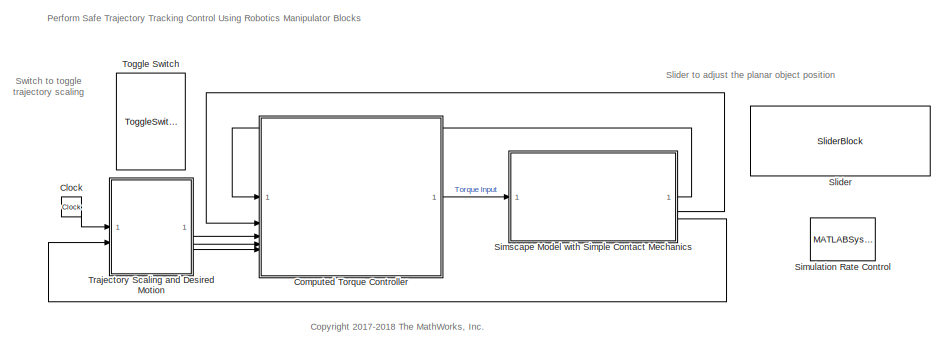
[diagram: root canvas - part 1/2, top left region]
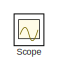
[diagram: root canvas - part 2/2, bottom right region]
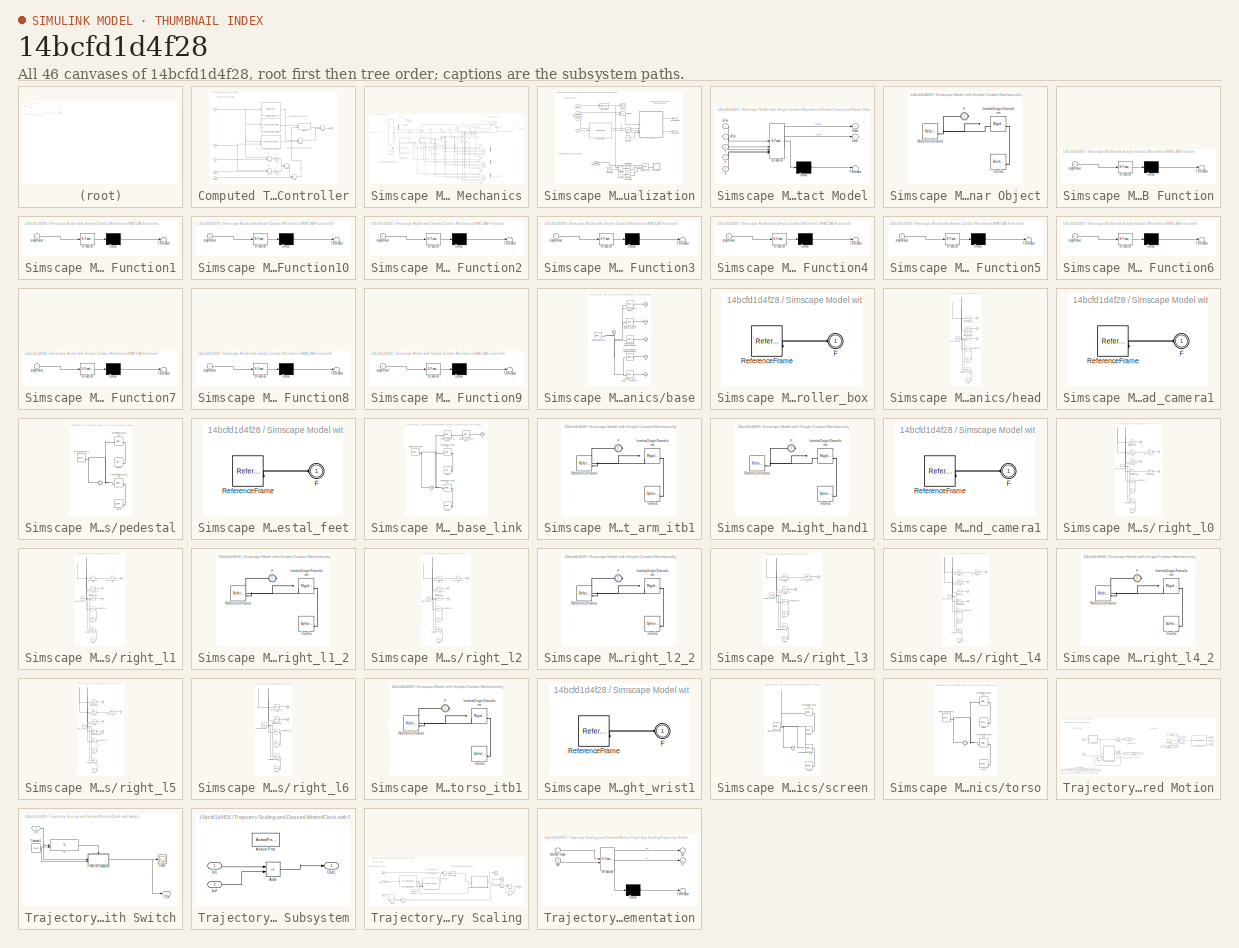
[diagram: thumbnail index - all 46 canvases of the model, root first then tree order]
MODEL slx_14bcfd1d4f28
KIND model
CONFIG AbsTol = auto
CONFIG EnableMultiTasking = off
CONFIG FixedStep = 0.005
CONFIG InitFcn = objectPos = 0.6;\nrefPos = 0.185;
CONFIG MaxStep = auto
CONFIG MinStep = auto
CONFIG PostLoadFcn = % load sawyer robot mesh for visualization\nexampleHelperLoadSawyerMesh()
CONFIG RelTol = 1e-3
CONFIG SampleTimeConstraint = Unconstrained
CONFIG SolverName = FixedStepAuto
CONFIG StartFcn = objectPos = 0.6;
CONFIG StartTime = 0.0
CONFIG StopTime = 20
WORKSPACE source: mxarray member
WORKSPACE p = [0 0 0 0 0 0 0.0291358024691 -0.218518518519 0.437037037037 0 0 -1.18 ... (42 elements, 6x7)]
WORKSPACE q0 = [0 -1.18 0 2.18 0 -1.0008 3.3161]
WORKSPACE q1 = [0 0 0 0 0 0 0]
WORKSPACE sawyer: robotics.RigidBodyTree (value not decoded)
WORKSPACE tDuration = 3
WORKSPACE tStart = 0.5
BLOCK [Clock] Clock
BLOCK [SubSystem] Computed Torque Controller
BLOCK [Sum] Computed Torque Controller/Add
  IconShape = rectangular
  Inputs = -+
BLOCK [Sum] Computed Torque Controller/Add1
  IconShape = rectangular
BLOCK [Sum] Computed Torque Controller/Add2
  IconShape = rectangular
  Inputs = +-
BLOCK [Sum] Computed Torque Controller/Add3
  IconShape = rectangular
  Inputs = +-
BLOCK [Sum] Computed Torque Controller/Add4
  IconShape = rectangular
BLOCK [Sum] Computed Torque Controller/Add5
  IconShape = rectangular
BLOCK [Reference] Computed Torque Controller/Gravity Torque  REF=robotmaniplib/Gravity Torque
  SourceBlock = robotmaniplib/Gravity Torque
  SourceType = Gravity Torque
BLOCK [Reference] Computed Torque Controller/Joint Space Mass Matrix  REF=robotmaniplib/Joint Space Mass Matrix
  SourceBlock = robotmaniplib/Joint Space Mass Matrix
  SourceType = Joint Space Mass Matrix
BLOCK [Gain] Computed Torque Controller/Kd
  Gain = 20
BLOCK [Gain] Computed Torque Controller/Kp
  Gain = 100
BLOCK [Product] Computed Torque Controller/Product
  Multiplication = Matrix(*)
BLOCK [Reference] Computed Torque Controller/Velocity Product Torque  REF=robotmaniplib/Velocity Product Torque
  SourceBlock = robotmaniplib/Velocity Product Torque
  SourceType = Velocity Product Torque
BLOCK [Inport] Computed Torque Controller/ddqd
  Port = 5
BLOCK [Inport] Computed Torque Controller/dq
  Port = 2
BLOCK [Inport] Computed Torque Controller/dqd
  Port = 4
BLOCK [Inport] Computed Torque Controller/q
BLOCK [Inport] Computed Torque Controller/qd
  Port = 3
BLOCK [Outport] Computed Torque Controller/u
  VectorParamsAs1DForOutWhenUnconnected = off
BLOCK [Scope] Scope
  Floating = off
  IOType = viewer
  NumInputPorts = 1
  ScopeSpecificationString = Simulink.scopes.TimeScopeBlockCfg('CurrentConfiguration', extmgr.ConfigurationSet(extmgr.Configuration('Core','General UI',true),extmgr.Configuration('Core','Source UI',true),extmgr.Configuration('Sources','WiredSimulink',true,'DataLoggingVariableName','ScopeData1'),extmgr.Configuration('Visuals','Time Domain',true,'SerializedDisplays',{struct('MinYLimReal','-105.18818','MaxYLimReal','33.60716','Y...<+3340ch>
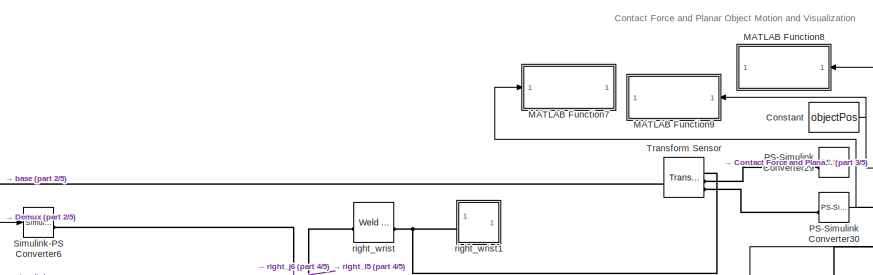
[diagram: Simscape Model with Simple Contact Mechanics - part 1/5, top right region]
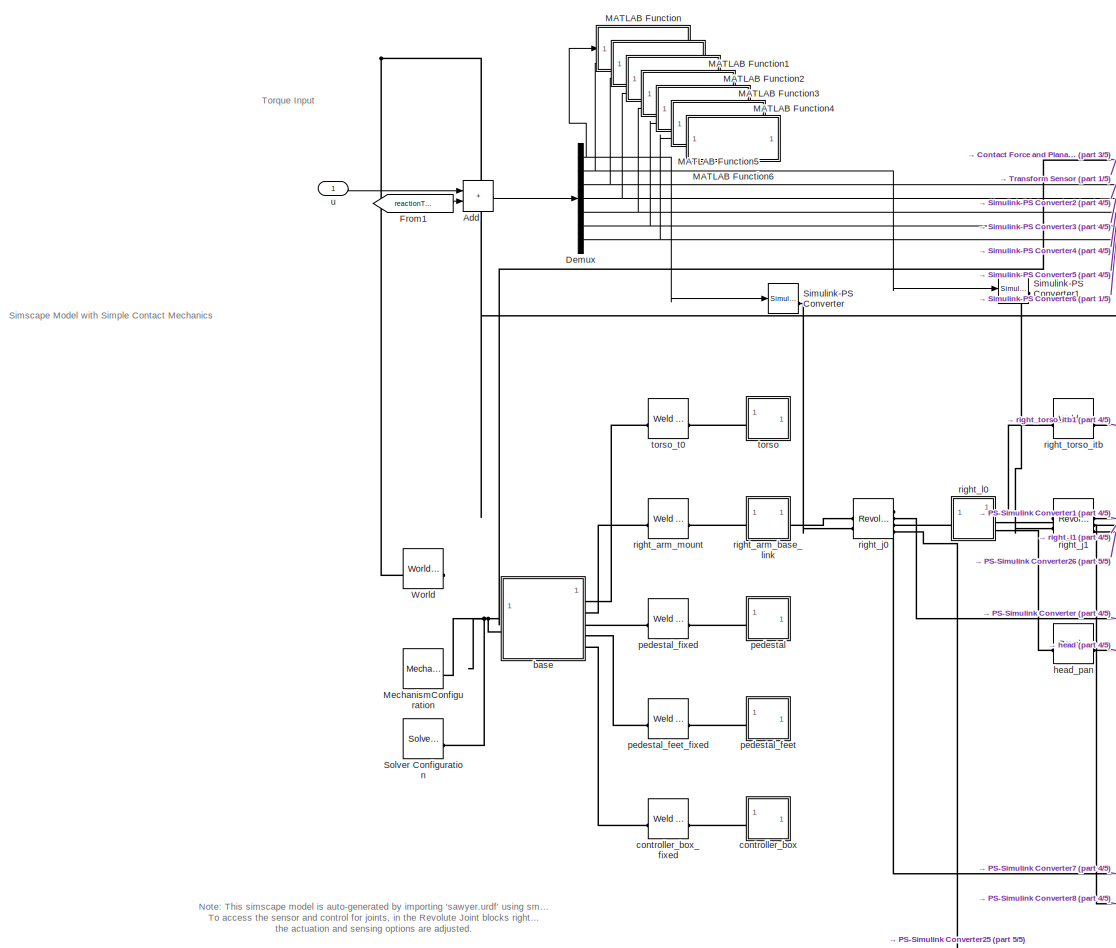
[diagram: Simscape Model with Simple Contact Mechanics - part 2/5, middle left region]
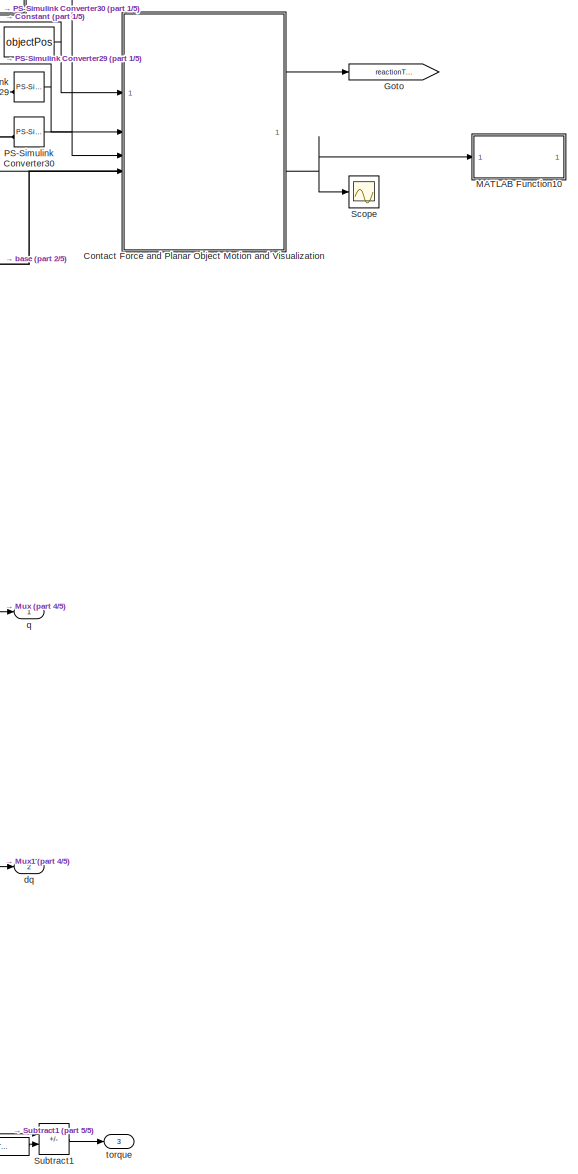
[diagram: Simscape Model with Simple Contact Mechanics - part 3/5, right side, full height]
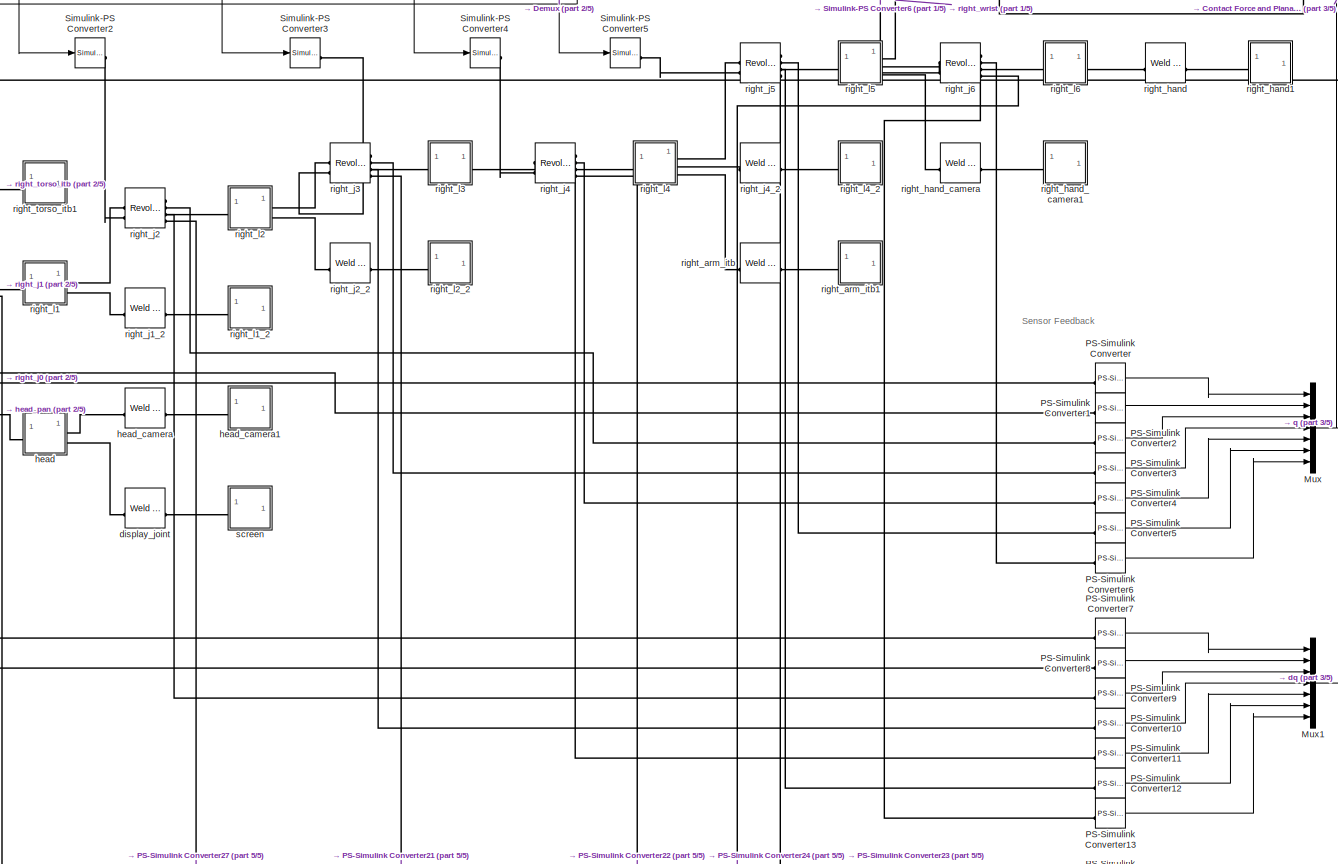
[diagram: Simscape Model with Simple Contact Mechanics - part 4/5, central region]
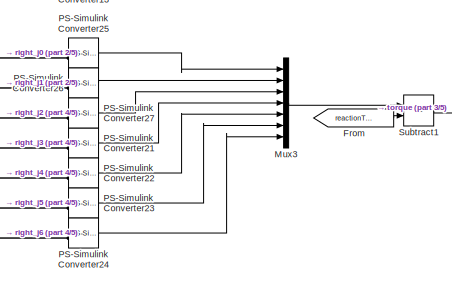
[diagram: Simscape Model with Simple Contact Mechanics - part 5/5, bottom right region]
BLOCK [SubSystem] Simscape Model with Simple Contact Mechanics
BLOCK [Sum] Simscape Model with Simple Contact Mechanics/Add
  IconShape = rectangular
BLOCK [Constant] Simscape Model with Simple Contact Mechanics/Constant
  Value = objectPos
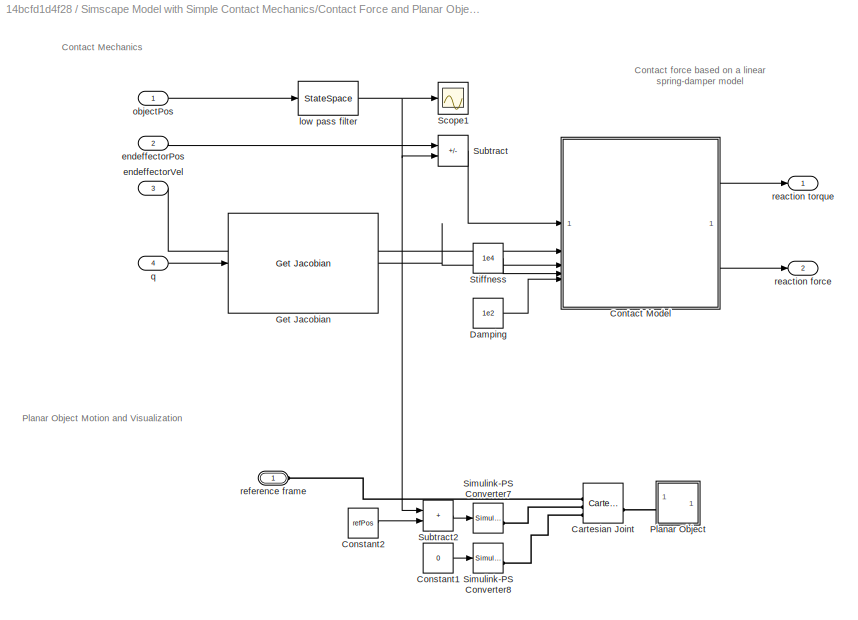
BLOCK [SubSystem] Simscape Model with Simple Contact Mechanics/Contact Force and Planar Object Motion and Visualization
BLOCK [Reference] Simscape Model with Simple Contact Mechanics/Contact Force and Planar Object Motion and Visualization/Cartesian Joint  REF=sm_lib/Joints/Cartesian
Joint
  SourceBlock = sm_lib/Joints/Cartesian\nJoint
  SourceType = Cartesian\nJoint
BLOCK [Constant] Simscape Model with Simple Contact Mechanics/Contact Force and Planar Object Motion and Visualization/Constant1
  Value = 0
BLOCK [Constant] Simscape Model with Simple Contact Mechanics/Contact Force and Planar Object Motion and Visualization/Constant2
  Value = refPos
BLOCK [SubSystem] Simscape Model with Simple Contact Mechanics/Contact Force and Planar Object Motion and Visualization/Contact Model
  ErrorFcn = Stateflow.Translate.translate
  PermitHierarchicalResolution = ExplicitOnly
  SFBlockType = MATLAB Function
  TreatAsAtomicUnit = on
BLOCK [Demux] Simscape Model with Simple Contact Mechanics/Contact Force and Planar Object Motion and Visualization/Contact Model/ Demux 
  Outputs = 1
BLOCK [S-Function] Simscape Model with Simple Contact Mechanics/Contact Force and Planar Object Motion and Visualization/Contact Model/ SFunction 
  EnableBusSupport = on
  FunctionName = sf_sfun
  PortCounts = [5 3]
  SFcnIsStateOwnerBlock = off
  SFunctionDeploymentMode = off
  Tag = Stateflow S-Function 7
BLOCK [Terminator] Simscape Model with Simple Contact Mechanics/Contact Force and Planar Object Motion and Visualization/Contact Model/ Terminator 
BLOCK [Inport] Simscape Model with Simple Contact Mechanics/Contact Force and Planar Object Motion and Visualization/Contact Model/J
  Port = 3
BLOCK [Inport] Simscape Model with Simple Contact Mechanics/Contact Force and Planar Object Motion and Visualization/Contact Model/d
  Port = 5
BLOCK [Outport] Simscape Model with Simple Contact Mechanics/Contact Force and Planar Object Motion and Visualization/Contact Model/force
  Port = 2
  VectorParamsAs1DForOutWhenUnconnected = off
BLOCK [Inport] Simscape Model with Simple Contact Mechanics/Contact Force and Planar Object Motion and Visualization/Contact Model/k
  Port = 4
BLOCK [Outport] Simscape Model with Simple Contact Mechanics/Contact Force and Planar Object Motion and Visualization/Contact Model/torque
  VectorParamsAs1DForOutWhenUnconnected = off
BLOCK [Inport] Simscape Model with Simple Contact Mechanics/Contact Force and Planar Object Motion and Visualization/Contact Model/vPen
  Port = 2
BLOCK [Inport] Simscape Model with Simple Contact Mechanics/Contact Force and Planar Object Motion and Visualization/Contact Model/xPen
BLOCK [Constant] Simscape Model with Simple Contact Mechanics/Contact Force and Planar Object Motion and Visualization/Damping
  Value = 1e2
BLOCK [Reference] Simscape Model with Simple Contact Mechanics/Contact Force and Planar Object Motion and Visualization/Get Jacobian  REF=robotmaniplib/Get Jacobian
  SourceBlock = robotmaniplib/Get Jacobian
  SourceType = Get Jacobian
BLOCK [SubSystem] Simscape Model with Simple Contact Mechanics/Contact Force and Planar Object Motion and Visualization/Planar Object
BLOCK [PMIOPort] Simscape Model with Simple Contact Mechanics/Contact Force and Planar Object Motion and Visualization/Planar Object/F
  Side = Left
BLOCK [Reference] Simscape Model with Simple Contact Mechanics/Contact Force and Planar Object Motion and Visualization/Planar Object/Inertia  REF=sm_lib/Body Elements/Brick Solid
  SourceBlock = sm_lib/Body Elements/Brick Solid
  SourceType = Brick Solid
BLOCK [Reference] Simscape Model with Simple Contact Mechanics/Contact Force and Planar Object Motion and Visualization/Planar Object/InertiaOriginTransform  REF=sm_lib/Frames and
Transforms/Rigid
Transform
  SourceBlock = sm_lib/Frames and\nTransforms/Rigid\nTransform
  SourceType = Rigid\nTransform
BLOCK [Reference] Simscape Model with Simple Contact Mechanics/Contact Force and Planar Object Motion and Visualization/Planar Object/ReferenceFrame  REF=sm_lib/Frames and
Transforms/Reference
Frame
  SourceBlock = sm_lib/Frames and\nTransforms/Reference\nFrame
  SourceType = Reference\nFrame
BLOCK [Scope] Simscape Model with Simple Contact Mechanics/Contact Force and Planar Object Motion and Visualization/Scope1
  Floating = off
  NumInputPorts = 1
  ScopeSpecificationString = Simulink.scopes.TimeScopeBlockCfg('CurrentConfiguration', extmgr.ConfigurationSet(extmgr.Configuration('Core','General UI',true),extmgr.Configuration('Core','Source UI',true),extmgr.Configuration('Sources','WiredSimulink',true),extmgr.Configuration('Visuals','Time Domain',true,'SerializedDisplays',{struct('MinYLimReal','0.43697','MaxYLimReal','0.78005','YLabelReal','','MinYLimMag','0.43697','MaxYL...<+1336ch>
BLOCK [Reference] Simscape Model with Simple Contact Mechanics/Contact Force and Planar Object Motion and Visualization/Simulink-PS Converter7  REF=nesl_utility/Simulink-PS
Converter
  SourceBlock = nesl_utility/Simulink-PS\nConverter
  SourceType = Simulink-PS\nConverter
BLOCK [Reference] Simscape Model with Simple Contact Mechanics/Contact Force and Planar Object Motion and Visualization/Simulink-PS Converter8  REF=nesl_utility/Simulink-PS
Converter
  SourceBlock = nesl_utility/Simulink-PS\nConverter
  SourceType = Simulink-PS\nConverter
BLOCK [Constant] Simscape Model with Simple Contact Mechanics/Contact Force and Planar Object Motion and Visualization/Stiffness
  Value = 1e4
BLOCK [Sum] Simscape Model with Simple Contact Mechanics/Contact Force and Planar Object Motion and Visualization/Subtract
  IconShape = rectangular
  Inputs = +-
BLOCK [Sum] Simscape Model with Simple Contact Mechanics/Contact Force and Planar Object Motion and Visualization/Subtract2
  IconShape = rectangular
BLOCK [Inport] Simscape Model with Simple Contact Mechanics/Contact Force and Planar Object Motion and Visualization/endeffectorPos
  Port = 2
BLOCK [Inport] Simscape Model with Simple Contact Mechanics/Contact Force and Planar Object Motion and Visualization/endeffectorVel
  Port = 3
BLOCK [StateSpace] Simscape Model with Simple Contact Mechanics/Contact Force and Planar Object Motion and Visualization/low pass filter
  A = -10
  B = 10
  D = 0
  InitialCondition = objectPos
BLOCK [Inport] Simscape Model with Simple Contact Mechanics/Contact Force and Planar Object Motion and Visualization/objectPos
BLOCK [Inport] Simscape Model with Simple Contact Mechanics/Contact Force and Planar Object Motion and Visualization/q
  Port = 4
BLOCK [Outport] Simscape Model with Simple Contact Mechanics/Contact Force and Planar Object Motion and Visualization/reaction force
  Port = 2
  VectorParamsAs1DForOutWhenUnconnected = off
BLOCK [Outport] Simscape Model with Simple Contact Mechanics/Contact Force and Planar Object Motion and Visualization/reaction torque
  VectorParamsAs1DForOutWhenUnconnected = off
BLOCK [PMIOPort] Simscape Model with Simple Contact Mechanics/Contact Force and Planar Object Motion and Visualization/reference frame
  Side = Left
BLOCK [Demux] Simscape Model with Simple Contact Mechanics/Demux
  Outputs = 7
BLOCK [From] Simscape Model with Simple Contact Mechanics/From
  GotoTag = reactionTorque
BLOCK [From] Simscape Model with Simple Contact Mechanics/From1
  GotoTag = reactionTorque
BLOCK [Goto] Simscape Model with Simple Contact Mechanics/Goto
  GotoTag = reactionTorque
BLOCK [SubSystem] Simscape Model with Simple Contact Mechanics/MATLAB Function
  ErrorFcn = Stateflow.Translate.translate
  PermitHierarchicalResolution = ExplicitOnly
  SFBlockType = MATLAB Function
  TreatAsAtomicUnit = on
BLOCK [Demux] Simscape Model with Simple Contact Mechanics/MATLAB Function/ Demux 
  Outputs = 1
BLOCK [S-Function] Simscape Model with Simple Contact Mechanics/MATLAB Function/ SFunction 
  EnableBusSupport = on
  FunctionName = sf_sfun
  PortCounts = [1 1]
  SFcnIsStateOwnerBlock = off
  SFunctionDeploymentMode = off
  Tag = Stateflow S-Function 2
BLOCK [Terminator] Simscape Model with Simple Contact Mechanics/MATLAB Function/ Terminator 
BLOCK [Inport] Simscape Model with Simple Contact Mechanics/MATLAB Function/singleValue
BLOCK [SubSystem] Simscape Model with Simple Contact Mechanics/MATLAB Function1
  ErrorFcn = Stateflow.Translate.translate
  PermitHierarchicalResolution = ExplicitOnly
  SFBlockType = MATLAB Function
  TreatAsAtomicUnit = on
BLOCK [Demux] Simscape Model with Simple Contact Mechanics/MATLAB Function1/ Demux 
  Outputs = 1
BLOCK [S-Function] Simscape Model with Simple Contact Mechanics/MATLAB Function1/ SFunction 
  EnableBusSupport = on
  FunctionName = sf_sfun
  PortCounts = [1 1]
  SFcnIsStateOwnerBlock = off
  SFunctionDeploymentMode = off
  Tag = Stateflow S-Function 3
BLOCK [Terminator] Simscape Model with Simple Contact Mechanics/MATLAB Function1/ Terminator 
BLOCK [Inport] Simscape Model with Simple Contact Mechanics/MATLAB Function1/singleValue
BLOCK [SubSystem] Simscape Model with Simple Contact Mechanics/MATLAB Function10
  ErrorFcn = Stateflow.Translate.translate
  PermitHierarchicalResolution = ExplicitOnly
  SFBlockType = MATLAB Function
  TreatAsAtomicUnit = on
BLOCK [Demux] Simscape Model with Simple Contact Mechanics/MATLAB Function10/ Demux 
  Outputs = 1
BLOCK [S-Function] Simscape Model with Simple Contact Mechanics/MATLAB Function10/ SFunction 
  EnableBusSupport = on
  FunctionName = sf_sfun
  PortCounts = [1 1]
  SFcnIsStateOwnerBlock = off
  SFunctionDeploymentMode = off
  Tag = Stateflow S-Function 13
BLOCK [Terminator] Simscape Model with Simple Contact Mechanics/MATLAB Function10/ Terminator 
BLOCK [Inport] Simscape Model with Simple Contact Mechanics/MATLAB Function10/singleValue
BLOCK [SubSystem] Simscape Model with Simple Contact Mechanics/MATLAB Function2
  ErrorFcn = Stateflow.Translate.translate
  PermitHierarchicalResolution = ExplicitOnly
  SFBlockType = MATLAB Function
  TreatAsAtomicUnit = on
BLOCK [Demux] Simscape Model with Simple Contact Mechanics/MATLAB Function2/ Demux 
  Outputs = 1
BLOCK [S-Function] Simscape Model with Simple Contact Mechanics/MATLAB Function2/ SFunction 
  EnableBusSupport = on
  FunctionName = sf_sfun
  PortCounts = [1 1]
  SFcnIsStateOwnerBlock = off
  SFunctionDeploymentMode = off
  Tag = Stateflow S-Function 4
BLOCK [Terminator] Simscape Model with Simple Contact Mechanics/MATLAB Function2/ Terminator 
BLOCK [Inport] Simscape Model with Simple Contact Mechanics/MATLAB Function2/singleValue
BLOCK [SubSystem] Simscape Model with Simple Contact Mechanics/MATLAB Function3
  ErrorFcn = Stateflow.Translate.translate
  PermitHierarchicalResolution = ExplicitOnly
  SFBlockType = MATLAB Function
  TreatAsAtomicUnit = on
BLOCK [Demux] Simscape Model with Simple Contact Mechanics/MATLAB Function3/ Demux 
  Outputs = 1
BLOCK [S-Function] Simscape Model with Simple Contact Mechanics/MATLAB Function3/ SFunction 
  EnableBusSupport = on
  FunctionName = sf_sfun
  PortCounts = [1 1]
  SFcnIsStateOwnerBlock = off
  SFunctionDeploymentMode = off
  Tag = Stateflow S-Function 5
BLOCK [Terminator] Simscape Model with Simple Contact Mechanics/MATLAB Function3/ Terminator 
BLOCK [Inport] Simscape Model with Simple Contact Mechanics/MATLAB Function3/singleValue
BLOCK [SubSystem] Simscape Model with Simple Contact Mechanics/MATLAB Function4
  ErrorFcn = Stateflow.Translate.translate
  PermitHierarchicalResolution = ExplicitOnly
  SFBlockType = MATLAB Function
  TreatAsAtomicUnit = on
BLOCK [Demux] Simscape Model with Simple Contact Mechanics/MATLAB Function4/ Demux 
  Outputs = 1
BLOCK [S-Function] Simscape Model with Simple Contact Mechanics/MATLAB Function4/ SFunction 
  EnableBusSupport = on
  FunctionName = sf_sfun
  PortCounts = [1 1]
  SFcnIsStateOwnerBlock = off
  SFunctionDeploymentMode = off
  Tag = Stateflow S-Function 6
BLOCK [Terminator] Simscape Model with Simple Contact Mechanics/MATLAB Function4/ Terminator 
BLOCK [Inport] Simscape Model with Simple Contact Mechanics/MATLAB Function4/singleValue
BLOCK [SubSystem] Simscape Model with Simple Contact Mechanics/MATLAB Function5
  ErrorFcn = Stateflow.Translate.translate
  PermitHierarchicalResolution = ExplicitOnly
  SFBlockType = MATLAB Function
  TreatAsAtomicUnit = on
BLOCK [Demux] Simscape Model with Simple Contact Mechanics/MATLAB Function5/ Demux 
  Outputs = 1
BLOCK [S-Function] Simscape Model with Simple Contact Mechanics/MATLAB Function5/ SFunction 
  EnableBusSupport = on
  FunctionName = sf_sfun
  PortCounts = [1 1]
  SFcnIsStateOwnerBlock = off
  SFunctionDeploymentMode = off
  Tag = Stateflow S-Function 8
BLOCK [Terminator] Simscape Model with Simple Contact Mechanics/MATLAB Function5/ Terminator 
BLOCK [Inport] Simscape Model with Simple Contact Mechanics/MATLAB Function5/singleValue
BLOCK [SubSystem] Simscape Model with Simple Contact Mechanics/MATLAB Function6
  ErrorFcn = Stateflow.Translate.translate
  PermitHierarchicalResolution = ExplicitOnly
  SFBlockType = MATLAB Function
  TreatAsAtomicUnit = on
BLOCK [Demux] Simscape Model with Simple Contact Mechanics/MATLAB Function6/ Demux 
  Outputs = 1
BLOCK [S-Function] Simscape Model with Simple Contact Mechanics/MATLAB Function6/ SFunction 
  EnableBusSupport = on
  FunctionName = sf_sfun
  PortCounts = [1 1]
  SFcnIsStateOwnerBlock = off
  SFunctionDeploymentMode = off
  Tag = Stateflow S-Function 9
BLOCK [Terminator] Simscape Model with Simple Contact Mechanics/MATLAB Function6/ Terminator 
BLOCK [Inport] Simscape Model with Simple Contact Mechanics/MATLAB Function6/singleValue
BLOCK [SubSystem] Simscape Model with Simple Contact Mechanics/MATLAB Function7
  ErrorFcn = Stateflow.Translate.translate
  PermitHierarchicalResolution = ExplicitOnly
  SFBlockType = MATLAB Function
  TreatAsAtomicUnit = on
BLOCK [Demux] Simscape Model with Simple Contact Mechanics/MATLAB Function7/ Demux 
  Outputs = 1
BLOCK [S-Function] Simscape Model with Simple Contact Mechanics/MATLAB Function7/ SFunction 
  EnableBusSupport = on
  FunctionName = sf_sfun
  PortCounts = [1 1]
  SFcnIsStateOwnerBlock = off
  SFunctionDeploymentMode = off
  Tag = Stateflow S-Function 10
BLOCK [Terminator] Simscape Model with Simple Contact Mechanics/MATLAB Function7/ Terminator 
BLOCK [Inport] Simscape Model with Simple Contact Mechanics/MATLAB Function7/singleValue
BLOCK [SubSystem] Simscape Model with Simple Contact Mechanics/MATLAB Function8
  ErrorFcn = Stateflow.Translate.translate
  NameLocation = top
  PermitHierarchicalResolution = ExplicitOnly
  SFBlockType = MATLAB Function
  TreatAsAtomicUnit = on
BLOCK [Demux] Simscape Model with Simple Contact Mechanics/MATLAB Function8/ Demux 
  Outputs = 1
BLOCK [S-Function] Simscape Model with Simple Contact Mechanics/MATLAB Function8/ SFunction 
  EnableBusSupport = on
  FunctionName = sf_sfun
  PortCounts = [1 1]
  SFcnIsStateOwnerBlock = off
  SFunctionDeploymentMode = off
  Tag = Stateflow S-Function 11
BLOCK [Terminator] Simscape Model with Simple Contact Mechanics/MATLAB Function8/ Terminator 
BLOCK [Inport] Simscape Model with Simple Contact Mechanics/MATLAB Function8/singleValue
BLOCK [SubSystem] Simscape Model with Simple Contact Mechanics/MATLAB Function9
  ErrorFcn = Stateflow.Translate.translate
  NameLocation = top
  PermitHierarchicalResolution = ExplicitOnly
  SFBlockType = MATLAB Function
  TreatAsAtomicUnit = on
BLOCK [Demux] Simscape Model with Simple Contact Mechanics/MATLAB Function9/ Demux 
  Outputs = 1
BLOCK [S-Function] Simscape Model with Simple Contact Mechanics/MATLAB Function9/ SFunction 
  EnableBusSupport = on
  FunctionName = sf_sfun
  PortCounts = [1 1]
  SFcnIsStateOwnerBlock = off
  SFunctionDeploymentMode = off
  Tag = Stateflow S-Function 12
BLOCK [Terminator] Simscape Model with Simple Contact Mechanics/MATLAB Function9/ Terminator 
BLOCK [Inport] Simscape Model with Simple Contact Mechanics/MATLAB Function9/singleValue
BLOCK [Reference] Simscape Model with Simple Contact Mechanics/MechanismConfiguration  REF=sm_lib/Utilities/Mechanism
Configuration
  SourceBlock = sm_lib/Utilities/Mechanism\nConfiguration
  SourceType = Mechanism\nConfiguration
BLOCK [Mux] Simscape Model with Simple Contact Mechanics/Mux
  DisplayOption = bar
  Inputs = 7
BLOCK [Mux] Simscape Model with Simple Contact Mechanics/Mux1
  DisplayOption = bar
  Inputs = 7
BLOCK [Mux] Simscape Model with Simple Contact Mechanics/Mux3
  DisplayOption = bar
  Inputs = 7
BLOCK [Reference] Simscape Model with Simple Contact Mechanics/PS-Simulink Converter  REF=nesl_utility/PS-Simulink
Converter
  SourceBlock = nesl_utility/PS-Simulink\nConverter
  SourceType = PS-Simulink\nConverter
BLOCK [Reference] Simscape Model with Simple Contact Mechanics/PS-Simulink Converter1  REF=nesl_utility/PS-Simulink
Converter
  SourceBlock = nesl_utility/PS-Simulink\nConverter
  SourceType = PS-Simulink\nConverter
BLOCK [Reference] Simscape Model with Simple Contact Mechanics/PS-Simulink Converter10  REF=nesl_utility/PS-Simulink
Converter
  SourceBlock = nesl_utility/PS-Simulink\nConverter
  SourceType = PS-Simulink\nConverter
BLOCK [Reference] Simscape Model with Simple Contact Mechanics/PS-Simulink Converter11  REF=nesl_utility/PS-Simulink
Converter
  SourceBlock = nesl_utility/PS-Simulink\nConverter
  SourceType = PS-Simulink\nConverter
BLOCK [Reference] Simscape Model with Simple Contact Mechanics/PS-Simulink Converter12  REF=nesl_utility/PS-Simulink
Converter
  SourceBlock = nesl_utility/PS-Simulink\nConverter
  SourceType = PS-Simulink\nConverter
BLOCK [Reference] Simscape Model with Simple Contact Mechanics/PS-Simulink Converter13  REF=nesl_utility/PS-Simulink
Converter
  SourceBlock = nesl_utility/PS-Simulink\nConverter
  SourceType = PS-Simulink\nConverter
BLOCK [Reference] Simscape Model with Simple Contact Mechanics/PS-Simulink Converter2  REF=nesl_utility/PS-Simulink
Converter
  SourceBlock = nesl_utility/PS-Simulink\nConverter
  SourceType = PS-Simulink\nConverter
BLOCK [Reference] Simscape Model with Simple Contact Mechanics/PS-Simulink Converter21  REF=nesl_utility/PS-Simulink
Converter
  SourceBlock = nesl_utility/PS-Simulink\nConverter
  SourceType = PS-Simulink\nConverter
BLOCK [Reference] Simscape Model with Simple Contact Mechanics/PS-Simulink Converter22  REF=nesl_utility/PS-Simulink
Converter
  SourceBlock = nesl_utility/PS-Simulink\nConverter
  SourceType = PS-Simulink\nConverter
BLOCK [Reference] Simscape Model with Simple Contact Mechanics/PS-Simulink Converter23  REF=nesl_utility/PS-Simulink
Converter
  SourceBlock = nesl_utility/PS-Simulink\nConverter
  SourceType = PS-Simulink\nConverter
BLOCK [Reference] Simscape Model with Simple Contact Mechanics/PS-Simulink Converter24  REF=nesl_utility/PS-Simulink
Converter
  SourceBlock = nesl_utility/PS-Simulink\nConverter
  SourceType = PS-Simulink\nConverter
BLOCK [Reference] Simscape Model with Simple Contact Mechanics/PS-Simulink Converter25  REF=nesl_utility/PS-Simulink
Converter
  SourceBlock = nesl_utility/PS-Simulink\nConverter
  SourceType = PS-Simulink\nConverter
BLOCK [Reference] Simscape Model with Simple Contact Mechanics/PS-Simulink Converter26  REF=nesl_utility/PS-Simulink
Converter
  SourceBlock = nesl_utility/PS-Simulink\nConverter
  SourceType = PS-Simulink\nConverter
BLOCK [Reference] Simscape Model with Simple Contact Mechanics/PS-Simulink Converter27  REF=nesl_utility/PS-Simulink
Converter
  SourceBlock = nesl_utility/PS-Simulink\nConverter
  SourceType = PS-Simulink\nConverter
BLOCK [Reference] Simscape Model with Simple Contact Mechanics/PS-Simulink Converter29  REF=nesl_utility/PS-Simulink
Converter
  SourceBlock = nesl_utility/PS-Simulink\nConverter
  SourceType = PS-Simulink\nConverter
BLOCK [Reference] Simscape Model with Simple Contact Mechanics/PS-Simulink Converter3  REF=nesl_utility/PS-Simulink
Converter
  SourceBlock = nesl_utility/PS-Simulink\nConverter
  SourceType = PS-Simulink\nConverter
BLOCK [Reference] Simscape Model with Simple Contact Mechanics/PS-Simulink Converter30  REF=nesl_utility/PS-Simulink
Converter
  SourceBlock = nesl_utility/PS-Simulink\nConverter
  SourceType = PS-Simulink\nConverter
BLOCK [Reference] Simscape Model with Simple Contact Mechanics/PS-Simulink Converter4  REF=nesl_utility/PS-Simulink
Converter
  SourceBlock = nesl_utility/PS-Simulink\nConverter
  SourceType = PS-Simulink\nConverter
BLOCK [Reference] Simscape Model with Simple Contact Mechanics/PS-Simulink Converter5  REF=nesl_utility/PS-Simulink
Converter
  SourceBlock = nesl_utility/PS-Simulink\nConverter
  SourceType = PS-Simulink\nConverter
BLOCK [Reference] Simscape Model with Simple Contact Mechanics/PS-Simulink Converter6  REF=nesl_utility/PS-Simulink
Converter
  SourceBlock = nesl_utility/PS-Simulink\nConverter
  SourceType = PS-Simulink\nConverter
BLOCK [Reference] Simscape Model with Simple Contact Mechanics/PS-Simulink Converter7  REF=nesl_utility/PS-Simulink
Converter
  SourceBlock = nesl_utility/PS-Simulink\nConverter
  SourceType = PS-Simulink\nConverter
BLOCK [Reference] Simscape Model with Simple Contact Mechanics/PS-Simulink Converter8  REF=nesl_utility/PS-Simulink
Converter
  SourceBlock = nesl_utility/PS-Simulink\nConverter
  SourceType = PS-Simulink\nConverter
BLOCK [Reference] Simscape Model with Simple Contact Mechanics/PS-Simulink Converter9  REF=nesl_utility/PS-Simulink
Converter
  SourceBlock = nesl_utility/PS-Simulink\nConverter
  SourceType = PS-Simulink\nConverter
BLOCK [Scope] Simscape Model with Simple Contact Mechanics/Scope
  Floating = off
  NumInputPorts = 1
  ScopeSpecificationString = Simulink.scopes.TimeScopeBlockCfg('CurrentConfiguration', extmgr.ConfigurationSet(extmgr.Configuration('Core','General UI',true),extmgr.Configuration('Core','Source UI',true),extmgr.Configuration('Sources','WiredSimulink',true,'DataLoggingVariableName','ScopeData1'),extmgr.Configuration('Visuals','Time Domain',true,'SerializedDisplays',{struct('MinYLimReal','-20383.08393','MaxYLimReal','2264.7871'...<+1415ch>
BLOCK [Reference] Simscape Model with Simple Contact Mechanics/Simulink-PS Converter  REF=nesl_utility/Simulink-PS
Converter
  SourceBlock = nesl_utility/Simulink-PS\nConverter
  SourceType = Simulink-PS\nConverter
BLOCK [Reference] Simscape Model with Simple Contact Mechanics/Simulink-PS Converter1  REF=nesl_utility/Simulink-PS
Converter
  SourceBlock = nesl_utility/Simulink-PS\nConverter
  SourceType = Simulink-PS\nConverter
BLOCK [Reference] Simscape Model with Simple Contact Mechanics/Simulink-PS Converter2  REF=nesl_utility/Simulink-PS
Converter
  SourceBlock = nesl_utility/Simulink-PS\nConverter
  SourceType = Simulink-PS\nConverter
BLOCK [Reference] Simscape Model with Simple Contact Mechanics/Simulink-PS Converter3  REF=nesl_utility/Simulink-PS
Converter
  SourceBlock = nesl_utility/Simulink-PS\nConverter
  SourceType = Simulink-PS\nConverter
BLOCK [Reference] Simscape Model with Simple Contact Mechanics/Simulink-PS Converter4  REF=nesl_utility/Simulink-PS
Converter
  SourceBlock = nesl_utility/Simulink-PS\nConverter
  SourceType = Simulink-PS\nConverter
BLOCK [Reference] Simscape Model with Simple Contact Mechanics/Simulink-PS Converter5  REF=nesl_utility/Simulink-PS
Converter
  SourceBlock = nesl_utility/Simulink-PS\nConverter
  SourceType = Simulink-PS\nConverter
BLOCK [Reference] Simscape Model with Simple Contact Mechanics/Simulink-PS Converter6  REF=nesl_utility/Simulink-PS
Converter
  SourceBlock = nesl_utility/Simulink-PS\nConverter
  SourceType = Simulink-PS\nConverter
BLOCK [Reference] Simscape Model with Simple Contact Mechanics/Solver Configuration  REF=nesl_utility/Solver
Configuration
  SourceBlock = nesl_utility/Solver\nConfiguration
  SourceType = Solver\nConfiguration
BLOCK [Sum] Simscape Model with Simple Contact Mechanics/Subtract1
  IconShape = rectangular
  Inputs = +-
BLOCK [Reference] Simscape Model with Simple Contact Mechanics/Transform Sensor  REF=sm_lib/Frames and
Transforms/Transform
Sensor
  SourceBlock = sm_lib/Frames and\nTransforms/Transform\nSensor
  SourceType = Transform\nSensor
BLOCK [Reference] Simscape Model with Simple Contact Mechanics/World  REF=sm_lib/Frames and
Transforms/World Frame
  SourceBlock = sm_lib/Frames and\nTransforms/World Frame
  SourceType = World Frame
BLOCK [SubSystem] Simscape Model with Simple Contact Mechanics/base
BLOCK [PMIOPort] Simscape Model with Simple Contact Mechanics/base/F
  Side = Left
BLOCK [PMIOPort] Simscape Model with Simple Contact Mechanics/base/F1
  Port = 6
  Side = Right
BLOCK [PMIOPort] Simscape Model with Simple Contact Mechanics/base/F2
  Port = 5
  Side = Right
BLOCK [PMIOPort] Simscape Model with Simple Contact Mechanics/base/F3
  Port = 4
  Side = Right
BLOCK [PMIOPort] Simscape Model with Simple Contact Mechanics/base/F4
  Port = 3
  Side = Right
BLOCK [PMIOPort] Simscape Model with Simple Contact Mechanics/base/F5
  Port = 2
  Side = Right
BLOCK [Reference] Simscape Model with Simple Contact Mechanics/base/ReferenceFrame  REF=sm_lib/Frames and
Transforms/Reference
Frame
  SourceBlock = sm_lib/Frames and\nTransforms/Reference\nFrame
  SourceType = Reference\nFrame
BLOCK [Reference] Simscape Model with Simple Contact Mechanics/base/controller_box_fixed_OriginTransform  REF=sm_lib/Frames and
Transforms/Rigid
Transform
  SourceBlock = sm_lib/Frames and\nTransforms/Rigid\nTransform
  SourceType = Rigid\nTransform
BLOCK [Reference] Simscape Model with Simple Contact Mechanics/base/pedestal_feet_fixed_OriginTransform  REF=sm_lib/Frames and
Transforms/Rigid
Transform
  SourceBlock = sm_lib/Frames and\nTransforms/Rigid\nTransform
  SourceType = Rigid\nTransform
BLOCK [Reference] Simscape Model with Simple Contact Mechanics/base/pedestal_fixed_OriginTransform  REF=sm_lib/Frames and
Transforms/Rigid
Transform
  SourceBlock = sm_lib/Frames and\nTransforms/Rigid\nTransform
  SourceType = Rigid\nTransform
BLOCK [Reference] Simscape Model with Simple Contact Mechanics/base/right_arm_mount_OriginTransform  REF=sm_lib/Frames and
Transforms/Rigid
Transform
  SourceBlock = sm_lib/Frames and\nTransforms/Rigid\nTransform
  SourceType = Rigid\nTransform
BLOCK [Reference] Simscape Model with Simple Contact Mechanics/base/torso_t0_OriginTransform  REF=sm_lib/Frames and
Transforms/Rigid
Transform
  SourceBlock = sm_lib/Frames and\nTransforms/Rigid\nTransform
  SourceType = Rigid\nTransform
BLOCK [SubSystem] Simscape Model with Simple Contact Mechanics/controller_box
BLOCK [PMIOPort] Simscape Model with Simple Contact Mechanics/controller_box/F
  Side = Left
BLOCK [Reference] Simscape Model with Simple Contact Mechanics/controller_box/ReferenceFrame  REF=sm_lib/Frames and
Transforms/Reference
Frame
  SourceBlock = sm_lib/Frames and\nTransforms/Reference\nFrame
  SourceType = Reference\nFrame
BLOCK [Reference] Simscape Model with Simple Contact Mechanics/controller_box_fixed  REF=sm_lib/Joints/Weld Joint
  SourceBlock = sm_lib/Joints/Weld Joint
  SourceType = Weld Joint
BLOCK [Reference] Simscape Model with Simple Contact Mechanics/display_joint  REF=sm_lib/Joints/Weld Joint
  SourceBlock = sm_lib/Joints/Weld Joint
  SourceType = Weld Joint
BLOCK [Outport] Simscape Model with Simple Contact Mechanics/dq
  Port = 2
  VectorParamsAs1DForOutWhenUnconnected = off
BLOCK [SubSystem] Simscape Model with Simple Contact Mechanics/head
BLOCK [PMIOPort] Simscape Model with Simple Contact Mechanics/head/F
  Side = Left
BLOCK [PMIOPort] Simscape Model with Simple Contact Mechanics/head/F1
  Port = 3
  Side = Right
BLOCK [PMIOPort] Simscape Model with Simple Contact Mechanics/head/F2
  Port = 2
  Side = Right
BLOCK [Reference] Simscape Model with Simple Contact Mechanics/head/Inertia  REF=sm_lib/Body Elements/Spherical Solid
  SourceBlock = sm_lib/Body Elements/Spherical Solid
  SourceType = Spherical Solid
BLOCK [Reference] Simscape Model with Simple Contact Mechanics/head/InertiaOriginTransform  REF=sm_lib/Frames and
Transforms/Rigid
Transform
  SourceBlock = sm_lib/Frames and\nTransforms/Rigid\nTransform
  SourceType = Rigid\nTransform
BLOCK [Reference] Simscape Model with Simple Contact Mechanics/head/ReferenceFrame  REF=sm_lib/Frames and
Transforms/Reference
Frame
  SourceBlock = sm_lib/Frames and\nTransforms/Reference\nFrame
  SourceType = Reference\nFrame
BLOCK [Reference] Simscape Model with Simple Contact Mechanics/head/Visual  REF=sm_lib/Body Elements/File Solid
  SourceBlock = sm_lib/Body Elements/File Solid
  SourceType = File Solid
BLOCK [Reference] Simscape Model with Simple Contact Mechanics/head/VisualOriginTransform  REF=sm_lib/Frames and
Transforms/Rigid
Transform
  SourceBlock = sm_lib/Frames and\nTransforms/Rigid\nTransform
  SourceType = Rigid\nTransform
BLOCK [Reference] Simscape Model with Simple Contact Mechanics/head/display_joint_OriginTransform  REF=sm_lib/Frames and
Transforms/Rigid
Transform
  SourceBlock = sm_lib/Frames and\nTransforms/Rigid\nTransform
  SourceType = Rigid\nTransform
BLOCK [Reference] Simscape Model with Simple Contact Mechanics/head/head_camera_OriginTransform  REF=sm_lib/Frames and
Transforms/Rigid
Transform
  SourceBlock = sm_lib/Frames and\nTransforms/Rigid\nTransform
  SourceType = Rigid\nTransform
BLOCK [Reference] Simscape Model with Simple Contact Mechanics/head/head_pan_AxisInvTransform  REF=sm_lib/Frames and
Transforms/Rigid
Transform
  SourceBlock = sm_lib/Frames and\nTransforms/Rigid\nTransform
  SourceType = Rigid\nTransform
BLOCK [Reference] Simscape Model with Simple Contact Mechanics/head_camera  REF=sm_lib/Joints/Weld Joint
  SourceBlock = sm_lib/Joints/Weld Joint
  SourceType = Weld Joint
BLOCK [SubSystem] Simscape Model with Simple Contact Mechanics/head_camera1
BLOCK [PMIOPort] Simscape Model with Simple Contact Mechanics/head_camera1/F
  Side = Left
BLOCK [Reference] Simscape Model with Simple Contact Mechanics/head_camera1/ReferenceFrame  REF=sm_lib/Frames and
Transforms/Reference
Frame
  SourceBlock = sm_lib/Frames and\nTransforms/Reference\nFrame
  SourceType = Reference\nFrame
BLOCK [Reference] Simscape Model with Simple Contact Mechanics/head_pan  REF=sm_lib/Joints/Revolute Joint
  SourceBlock = sm_lib/Joints/Revolute Joint
  SourceType = Revolute Joint
BLOCK [SubSystem] Simscape Model with Simple Contact Mechanics/pedestal
BLOCK [PMIOPort] Simscape Model with Simple Contact Mechanics/pedestal/F
  Side = Left
BLOCK [Reference] Simscape Model with Simple Contact Mechanics/pedestal/Inertia  REF=sm_lib/Body Elements/Spherical Solid
  SourceBlock = sm_lib/Body Elements/Spherical Solid
  SourceType = Spherical Solid
BLOCK [Reference] Simscape Model with Simple Contact Mechanics/pedestal/InertiaOriginTransform  REF=sm_lib/Frames and
Transforms/Rigid
Transform
  SourceBlock = sm_lib/Frames and\nTransforms/Rigid\nTransform
  SourceType = Rigid\nTransform
BLOCK [Reference] Simscape Model with Simple Contact Mechanics/pedestal/ReferenceFrame  REF=sm_lib/Frames and
Transforms/Reference
Frame
  SourceBlock = sm_lib/Frames and\nTransforms/Reference\nFrame
  SourceType = Reference\nFrame
BLOCK [Reference] Simscape Model with Simple Contact Mechanics/pedestal/Visual  REF=sm_lib/Body Elements/File Solid
  SourceBlock = sm_lib/Body Elements/File Solid
  SourceType = File Solid
BLOCK [Reference] Simscape Model with Simple Contact Mechanics/pedestal/VisualOriginTransform  REF=sm_lib/Frames and
Transforms/Rigid
Transform
  SourceBlock = sm_lib/Frames and\nTransforms/Rigid\nTransform
  SourceType = Rigid\nTransform
BLOCK [SubSystem] Simscape Model with Simple Contact Mechanics/pedestal_feet
BLOCK [PMIOPort] Simscape Model with Simple Contact Mechanics/pedestal_feet/F
  Side = Left
BLOCK [Reference] Simscape Model with Simple Contact Mechanics/pedestal_feet/ReferenceFrame  REF=sm_lib/Frames and
Transforms/Reference
Frame
  SourceBlock = sm_lib/Frames and\nTransforms/Reference\nFrame
  SourceType = Reference\nFrame
BLOCK [Reference] Simscape Model with Simple Contact Mechanics/pedestal_feet_fixed  REF=sm_lib/Joints/Weld Joint
  SourceBlock = sm_lib/Joints/Weld Joint
  SourceType = Weld Joint
BLOCK [Reference] Simscape Model with Simple Contact Mechanics/pedestal_fixed  REF=sm_lib/Joints/Weld Joint
  SourceBlock = sm_lib/Joints/Weld Joint
  SourceType = Weld Joint
BLOCK [Outport] Simscape Model with Simple Contact Mechanics/q
  VectorParamsAs1DForOutWhenUnconnected = off
BLOCK [SubSystem] Simscape Model with Simple Contact Mechanics/right_arm_base_link
BLOCK [PMIOPort] Simscape Model with Simple Contact Mechanics/right_arm_base_link/F
  Side = Left
BLOCK [PMIOPort] Simscape Model with Simple Contact Mechanics/right_arm_base_link/F1
  Port = 2
  Side = Right
BLOCK [Reference] Simscape Model with Simple Contact Mechanics/right_arm_base_link/Inertia  REF=sm_lib/Body Elements/Spherical Solid
  SourceBlock = sm_lib/Body Elements/Spherical Solid
  SourceType = Spherical Solid
BLOCK [Reference] Simscape Model with Simple Contact Mechanics/right_arm_base_link/InertiaOriginTransform  REF=sm_lib/Frames and
Transforms/Rigid
Transform
  SourceBlock = sm_lib/Frames and\nTransforms/Rigid\nTransform
  SourceType = Rigid\nTransform
BLOCK [Reference] Simscape Model with Simple Contact Mechanics/right_arm_base_link/ReferenceFrame  REF=sm_lib/Frames and
Transforms/Reference
Frame
  SourceBlock = sm_lib/Frames and\nTransforms/Reference\nFrame
  SourceType = Reference\nFrame
BLOCK [Reference] Simscape Model with Simple Contact Mechanics/right_arm_base_link/Visual  REF=sm_lib/Body Elements/File Solid
  SourceBlock = sm_lib/Body Elements/File Solid
  SourceType = File Solid
BLOCK [Reference] Simscape Model with Simple Contact Mechanics/right_arm_base_link/VisualOriginTransform  REF=sm_lib/Frames and
Transforms/Rigid
Transform
  SourceBlock = sm_lib/Frames and\nTransforms/Rigid\nTransform
  SourceType = Rigid\nTransform
BLOCK [Reference] Simscape Model with Simple Contact Mechanics/right_arm_base_link/right_j0_AxisTransform  REF=sm_lib/Frames and
Transforms/Rigid
Transform
  SourceBlock = sm_lib/Frames and\nTransforms/Rigid\nTransform
  SourceType = Rigid\nTransform
BLOCK [Reference] Simscape Model with Simple Contact Mechanics/right_arm_base_link/right_j0_OriginTransform  REF=sm_lib/Frames and
Transforms/Rigid
Transform
  SourceBlock = sm_lib/Frames and\nTransforms/Rigid\nTransform
  SourceType = Rigid\nTransform
BLOCK [Reference] Simscape Model with Simple Contact Mechanics/right_arm_itb  REF=sm_lib/Joints/Weld Joint
  SourceBlock = sm_lib/Joints/Weld Joint
  SourceType = Weld Joint
BLOCK [SubSystem] Simscape Model with Simple Contact Mechanics/right_arm_itb1
BLOCK [PMIOPort] Simscape Model with Simple Contact Mechanics/right_arm_itb1/F
  Side = Left
BLOCK [Reference] Simscape Model with Simple Contact Mechanics/right_arm_itb1/Inertia  REF=sm_lib/Body Elements/Spherical Solid
  SourceBlock = sm_lib/Body Elements/Spherical Solid
  SourceType = Spherical Solid
BLOCK [Reference] Simscape Model with Simple Contact Mechanics/right_arm_itb1/InertiaOriginTransform  REF=sm_lib/Frames and
Transforms/Rigid
Transform
  SourceBlock = sm_lib/Frames and\nTransforms/Rigid\nTransform
  SourceType = Rigid\nTransform
BLOCK [Reference] Simscape Model with Simple Contact Mechanics/right_arm_itb1/ReferenceFrame  REF=sm_lib/Frames and
Transforms/Reference
Frame
  SourceBlock = sm_lib/Frames and\nTransforms/Reference\nFrame
  SourceType = Reference\nFrame
BLOCK [Reference] Simscape Model with Simple Contact Mechanics/right_arm_mount  REF=sm_lib/Joints/Weld Joint
  SourceBlock = sm_lib/Joints/Weld Joint
  SourceType = Weld Joint
BLOCK [Reference] Simscape Model with Simple Contact Mechanics/right_hand  REF=sm_lib/Joints/Weld Joint
  SourceBlock = sm_lib/Joints/Weld Joint
  SourceType = Weld Joint
BLOCK [SubSystem] Simscape Model with Simple Contact Mechanics/right_hand1
BLOCK [PMIOPort] Simscape Model with Simple Contact Mechanics/right_hand1/F
  Side = Left
BLOCK [Reference] Simscape Model with Simple Contact Mechanics/right_hand1/Inertia  REF=sm_lib/Body Elements/Spherical Solid
  SourceBlock = sm_lib/Body Elements/Spherical Solid
  SourceType = Spherical Solid
BLOCK [Reference] Simscape Model with Simple Contact Mechanics/right_hand1/InertiaOriginTransform  REF=sm_lib/Frames and
Transforms/Rigid
Transform
  SourceBlock = sm_lib/Frames and\nTransforms/Rigid\nTransform
  SourceType = Rigid\nTransform
BLOCK [Reference] Simscape Model with Simple Contact Mechanics/right_hand1/ReferenceFrame  REF=sm_lib/Frames and
Transforms/Reference
Frame
  SourceBlock = sm_lib/Frames and\nTransforms/Reference\nFrame
  SourceType = Reference\nFrame
BLOCK [Reference] Simscape Model with Simple Contact Mechanics/right_hand_camera  REF=sm_lib/Joints/Weld Joint
  SourceBlock = sm_lib/Joints/Weld Joint
  SourceType = Weld Joint
BLOCK [SubSystem] Simscape Model with Simple Contact Mechanics/right_hand_camera1
BLOCK [PMIOPort] Simscape Model with Simple Contact Mechanics/right_hand_camera1/F
  Side = Left
BLOCK [Reference] Simscape Model with Simple Contact Mechanics/right_hand_camera1/ReferenceFrame  REF=sm_lib/Frames and
Transforms/Reference
Frame
  SourceBlock = sm_lib/Frames and\nTransforms/Reference\nFrame
  SourceType = Reference\nFrame
BLOCK [Reference] Simscape Model with Simple Contact Mechanics/right_j0  REF=sm_lib/Joints/Revolute Joint
  SourceBlock = sm_lib/Joints/Revolute Joint
  SourceType = Revolute Joint
BLOCK [Reference] Simscape Model with Simple Contact Mechanics/right_j1  REF=sm_lib/Joints/Revolute Joint
  SourceBlock = sm_lib/Joints/Revolute Joint
  SourceType = Revolute Joint
BLOCK [Reference] Simscape Model with Simple Contact Mechanics/right_j1_2  REF=sm_lib/Joints/Weld Joint
  SourceBlock = sm_lib/Joints/Weld Joint
  SourceType = Weld Joint
BLOCK [Reference] Simscape Model with Simple Contact Mechanics/right_j2  REF=sm_lib/Joints/Revolute Joint
  SourceBlock = sm_lib/Joints/Revolute Joint
  SourceType = Revolute Joint
BLOCK [Reference] Simscape Model with Simple Contact Mechanics/right_j2_2  REF=sm_lib/Joints/Weld Joint
  SourceBlock = sm_lib/Joints/Weld Joint
  SourceType = Weld Joint
BLOCK [Reference] Simscape Model with Simple Contact Mechanics/right_j3  REF=sm_lib/Joints/Revolute Joint
  SourceBlock = sm_lib/Joints/Revolute Joint
  SourceType = Revolute Joint
BLOCK [Reference] Simscape Model with Simple Contact Mechanics/right_j4  REF=sm_lib/Joints/Revolute Joint
  SourceBlock = sm_lib/Joints/Revolute Joint
  SourceType = Revolute Joint
BLOCK [Reference] Simscape Model with Simple Contact Mechanics/right_j4_2  REF=sm_lib/Joints/Weld Joint
  SourceBlock = sm_lib/Joints/Weld Joint
  SourceType = Weld Joint
BLOCK [Reference] Simscape Model with Simple Contact Mechanics/right_j5  REF=sm_lib/Joints/Revolute Joint
  SourceBlock = sm_lib/Joints/Revolute Joint
  SourceType = Revolute Joint
BLOCK [Reference] Simscape Model with Simple Contact Mechanics/right_j6  REF=sm_lib/Joints/Revolute Joint
  SourceBlock = sm_lib/Joints/Revolute Joint
  SourceType = Revolute Joint
BLOCK [SubSystem] Simscape Model with Simple Contact Mechanics/right_l0
BLOCK [PMIOPort] Simscape Model with Simple Contact Mechanics/right_l0/F
  Side = Left
BLOCK [PMIOPort] Simscape Model with Simple Contact Mechanics/right_l0/F1
  Port = 4
  Side = Right
BLOCK [PMIOPort] Simscape Model with Simple Contact Mechanics/right_l0/F2
  Port = 3
  Side = Right
BLOCK [PMIOPort] Simscape Model with Simple Contact Mechanics/right_l0/F3
  Port = 2
  Side = Right
BLOCK [Reference] Simscape Model with Simple Contact Mechanics/right_l0/Inertia  REF=sm_lib/Body Elements/Spherical Solid
  SourceBlock = sm_lib/Body Elements/Spherical Solid
  SourceType = Spherical Solid
BLOCK [Reference] Simscape Model with Simple Contact Mechanics/right_l0/InertiaOriginTransform  REF=sm_lib/Frames and
Transforms/Rigid
Transform
  SourceBlock = sm_lib/Frames and\nTransforms/Rigid\nTransform
  SourceType = Rigid\nTransform
BLOCK [Reference] Simscape Model with Simple Contact Mechanics/right_l0/ReferenceFrame  REF=sm_lib/Frames and
Transforms/Reference
Frame
  SourceBlock = sm_lib/Frames and\nTransforms/Reference\nFrame
  SourceType = Reference\nFrame
BLOCK [Reference] Simscape Model with Simple Contact Mechanics/right_l0/Visual  REF=sm_lib/Body Elements/File Solid
  SourceBlock = sm_lib/Body Elements/File Solid
  SourceType = File Solid
BLOCK [Reference] Simscape Model with Simple Contact Mechanics/right_l0/VisualOriginTransform  REF=sm_lib/Frames and
Transforms/Rigid
Transform
  SourceBlock = sm_lib/Frames and\nTransforms/Rigid\nTransform
  SourceType = Rigid\nTransform
BLOCK [Reference] Simscape Model with Simple Contact Mechanics/right_l0/head_pan_AxisTransform  REF=sm_lib/Frames and
Transforms/Rigid
Transform
  SourceBlock = sm_lib/Frames and\nTransforms/Rigid\nTransform
  SourceType = Rigid\nTransform
BLOCK [Reference] Simscape Model with Simple Contact Mechanics/right_l0/head_pan_OriginTransform  REF=sm_lib/Frames and
Transforms/Rigid
Transform
  SourceBlock = sm_lib/Frames and\nTransforms/Rigid\nTransform
  SourceType = Rigid\nTransform
BLOCK [Reference] Simscape Model with Simple Contact Mechanics/right_l0/right_j0_AxisInvTransform  REF=sm_lib/Frames and
Transforms/Rigid
Transform
  SourceBlock = sm_lib/Frames and\nTransforms/Rigid\nTransform
  SourceType = Rigid\nTransform
BLOCK [Reference] Simscape Model with Simple Contact Mechanics/right_l0/right_j1_AxisTransform  REF=sm_lib/Frames and
Transforms/Rigid
Transform
  SourceBlock = sm_lib/Frames and\nTransforms/Rigid\nTransform
  SourceType = Rigid\nTransform
BLOCK [Reference] Simscape Model with Simple Contact Mechanics/right_l0/right_j1_OriginTransform  REF=sm_lib/Frames and
Transforms/Rigid
Transform
  SourceBlock = sm_lib/Frames and\nTransforms/Rigid\nTransform
  SourceType = Rigid\nTransform
BLOCK [Reference] Simscape Model with Simple Contact Mechanics/right_l0/right_torso_itb_OriginTransform  REF=sm_lib/Frames and
Transforms/Rigid
Transform
  SourceBlock = sm_lib/Frames and\nTransforms/Rigid\nTransform
  SourceType = Rigid\nTransform
BLOCK [SubSystem] Simscape Model with Simple Contact Mechanics/right_l1
BLOCK [PMIOPort] Simscape Model with Simple Contact Mechanics/right_l1/F
  Side = Left
BLOCK [PMIOPort] Simscape Model with Simple Contact Mechanics/right_l1/F1
  Port = 3
  Side = Right
BLOCK [PMIOPort] Simscape Model with Simple Contact Mechanics/right_l1/F2
  Port = 2
  Side = Right
BLOCK [Reference] Simscape Model with Simple Contact Mechanics/right_l1/Inertia  REF=sm_lib/Body Elements/Spherical Solid
  SourceBlock = sm_lib/Body Elements/Spherical Solid
  SourceType = Spherical Solid
BLOCK [Reference] Simscape Model with Simple Contact Mechanics/right_l1/InertiaOriginTransform  REF=sm_lib/Frames and
Transforms/Rigid
Transform
  SourceBlock = sm_lib/Frames and\nTransforms/Rigid\nTransform
  SourceType = Rigid\nTransform
BLOCK [Reference] Simscape Model with Simple Contact Mechanics/right_l1/ReferenceFrame  REF=sm_lib/Frames and
Transforms/Reference
Frame
  SourceBlock = sm_lib/Frames and\nTransforms/Reference\nFrame
  SourceType = Reference\nFrame
BLOCK [Reference] Simscape Model with Simple Contact Mechanics/right_l1/Visual  REF=sm_lib/Body Elements/File Solid
  SourceBlock = sm_lib/Body Elements/File Solid
  SourceType = File Solid
BLOCK [Reference] Simscape Model with Simple Contact Mechanics/right_l1/VisualOriginTransform  REF=sm_lib/Frames and
Transforms/Rigid
Transform
  SourceBlock = sm_lib/Frames and\nTransforms/Rigid\nTransform
  SourceType = Rigid\nTransform
BLOCK [Reference] Simscape Model with Simple Contact Mechanics/right_l1/right_j1_2_OriginTransform  REF=sm_lib/Frames and
Transforms/Rigid
Transform
  SourceBlock = sm_lib/Frames and\nTransforms/Rigid\nTransform
  SourceType = Rigid\nTransform
BLOCK [Reference] Simscape Model with Simple Contact Mechanics/right_l1/right_j1_AxisInvTransform  REF=sm_lib/Frames and
Transforms/Rigid
Transform
  SourceBlock = sm_lib/Frames and\nTransforms/Rigid\nTransform
  SourceType = Rigid\nTransform
BLOCK [Reference] Simscape Model with Simple Contact Mechanics/right_l1/right_j2_AxisTransform  REF=sm_lib/Frames and
Transforms/Rigid
Transform
  SourceBlock = sm_lib/Frames and\nTransforms/Rigid\nTransform
  SourceType = Rigid\nTransform
BLOCK [Reference] Simscape Model with Simple Contact Mechanics/right_l1/right_j2_OriginTransform  REF=sm_lib/Frames and
Transforms/Rigid
Transform
  SourceBlock = sm_lib/Frames and\nTransforms/Rigid\nTransform
  SourceType = Rigid\nTransform
BLOCK [SubSystem] Simscape Model with Simple Contact Mechanics/right_l1_2
BLOCK [PMIOPort] Simscape Model with Simple Contact Mechanics/right_l1_2/F
  Side = Left
BLOCK [Reference] Simscape Model with Simple Contact Mechanics/right_l1_2/Inertia  REF=sm_lib/Body Elements/Spherical Solid
  SourceBlock = sm_lib/Body Elements/Spherical Solid
  SourceType = Spherical Solid
BLOCK [Reference] Simscape Model with Simple Contact Mechanics/right_l1_2/InertiaOriginTransform  REF=sm_lib/Frames and
Transforms/Rigid
Transform
  SourceBlock = sm_lib/Frames and\nTransforms/Rigid\nTransform
  SourceType = Rigid\nTransform
BLOCK [Reference] Simscape Model with Simple Contact Mechanics/right_l1_2/ReferenceFrame  REF=sm_lib/Frames and
Transforms/Reference
Frame
  SourceBlock = sm_lib/Frames and\nTransforms/Reference\nFrame
  SourceType = Reference\nFrame
BLOCK [SubSystem] Simscape Model with Simple Contact Mechanics/right_l2
BLOCK [PMIOPort] Simscape Model with Simple Contact Mechanics/right_l2/F
  Side = Left
BLOCK [PMIOPort] Simscape Model with Simple Contact Mechanics/right_l2/F1
  Port = 3
  Side = Right
BLOCK [PMIOPort] Simscape Model with Simple Contact Mechanics/right_l2/F2
  Port = 2
  Side = Right
BLOCK [Reference] Simscape Model with Simple Contact Mechanics/right_l2/Inertia  REF=sm_lib/Body Elements/Spherical Solid
  SourceBlock = sm_lib/Body Elements/Spherical Solid
  SourceType = Spherical Solid
BLOCK [Reference] Simscape Model with Simple Contact Mechanics/right_l2/InertiaOriginTransform  REF=sm_lib/Frames and
Transforms/Rigid
Transform
  SourceBlock = sm_lib/Frames and\nTransforms/Rigid\nTransform
  SourceType = Rigid\nTransform
BLOCK [Reference] Simscape Model with Simple Contact Mechanics/right_l2/ReferenceFrame  REF=sm_lib/Frames and
Transforms/Reference
Frame
  SourceBlock = sm_lib/Frames and\nTransforms/Reference\nFrame
  SourceType = Reference\nFrame
BLOCK [Reference] Simscape Model with Simple Contact Mechanics/right_l2/Visual  REF=sm_lib/Body Elements/File Solid
  SourceBlock = sm_lib/Body Elements/File Solid
  SourceType = File Solid
BLOCK [Reference] Simscape Model with Simple Contact Mechanics/right_l2/VisualOriginTransform  REF=sm_lib/Frames and
Transforms/Rigid
Transform
  SourceBlock = sm_lib/Frames and\nTransforms/Rigid\nTransform
  SourceType = Rigid\nTransform
BLOCK [Reference] Simscape Model with Simple Contact Mechanics/right_l2/right_j2_2_OriginTransform  REF=sm_lib/Frames and
Transforms/Rigid
Transform
  SourceBlock = sm_lib/Frames and\nTransforms/Rigid\nTransform
  SourceType = Rigid\nTransform
BLOCK [Reference] Simscape Model with Simple Contact Mechanics/right_l2/right_j2_AxisInvTransform  REF=sm_lib/Frames and
Transforms/Rigid
Transform
  SourceBlock = sm_lib/Frames and\nTransforms/Rigid\nTransform
  SourceType = Rigid\nTransform
BLOCK [Reference] Simscape Model with Simple Contact Mechanics/right_l2/right_j3_AxisTransform  REF=sm_lib/Frames and
Transforms/Rigid
Transform
  SourceBlock = sm_lib/Frames and\nTransforms/Rigid\nTransform
  SourceType = Rigid\nTransform
BLOCK [Reference] Simscape Model with Simple Contact Mechanics/right_l2/right_j3_OriginTransform  REF=sm_lib/Frames and
Transforms/Rigid
Transform
  SourceBlock = sm_lib/Frames and\nTransforms/Rigid\nTransform
  SourceType = Rigid\nTransform
BLOCK [SubSystem] Simscape Model with Simple Contact Mechanics/right_l2_2
BLOCK [PMIOPort] Simscape Model with Simple Contact Mechanics/right_l2_2/F
  Side = Left
BLOCK [Reference] Simscape Model with Simple Contact Mechanics/right_l2_2/Inertia  REF=sm_lib/Body Elements/Spherical Solid
  SourceBlock = sm_lib/Body Elements/Spherical Solid
  SourceType = Spherical Solid
BLOCK [Reference] Simscape Model with Simple Contact Mechanics/right_l2_2/InertiaOriginTransform  REF=sm_lib/Frames and
Transforms/Rigid
Transform
  SourceBlock = sm_lib/Frames and\nTransforms/Rigid\nTransform
  SourceType = Rigid\nTransform
BLOCK [Reference] Simscape Model with Simple Contact Mechanics/right_l2_2/ReferenceFrame  REF=sm_lib/Frames and
Transforms/Reference
Frame
  SourceBlock = sm_lib/Frames and\nTransforms/Reference\nFrame
  SourceType = Reference\nFrame
BLOCK [SubSystem] Simscape Model with Simple Contact Mechanics/right_l3
BLOCK [PMIOPort] Simscape Model with Simple Contact Mechanics/right_l3/F
  Side = Left
BLOCK [PMIOPort] Simscape Model with Simple Contact Mechanics/right_l3/F1
  Port = 2
  Side = Right
BLOCK [Reference] Simscape Model with Simple Contact Mechanics/right_l3/Inertia  REF=sm_lib/Body Elements/Spherical Solid
  SourceBlock = sm_lib/Body Elements/Spherical Solid
  SourceType = Spherical Solid
BLOCK [Reference] Simscape Model with Simple Contact Mechanics/right_l3/InertiaOriginTransform  REF=sm_lib/Frames and
Transforms/Rigid
Transform
  SourceBlock = sm_lib/Frames and\nTransforms/Rigid\nTransform
  SourceType = Rigid\nTransform
BLOCK [Reference] Simscape Model with Simple Contact Mechanics/right_l3/ReferenceFrame  REF=sm_lib/Frames and
Transforms/Reference
Frame
  SourceBlock = sm_lib/Frames and\nTransforms/Reference\nFrame
  SourceType = Reference\nFrame
BLOCK [Reference] Simscape Model with Simple Contact Mechanics/right_l3/Visual  REF=sm_lib/Body Elements/File Solid
  SourceBlock = sm_lib/Body Elements/File Solid
  SourceType = File Solid
BLOCK [Reference] Simscape Model with Simple Contact Mechanics/right_l3/VisualOriginTransform  REF=sm_lib/Frames and
Transforms/Rigid
Transform
  SourceBlock = sm_lib/Frames and\nTransforms/Rigid\nTransform
  SourceType = Rigid\nTransform
BLOCK [Reference] Simscape Model with Simple Contact Mechanics/right_l3/right_j3_AxisInvTransform  REF=sm_lib/Frames and
Transforms/Rigid
Transform
  SourceBlock = sm_lib/Frames and\nTransforms/Rigid\nTransform
  SourceType = Rigid\nTransform
BLOCK [Reference] Simscape Model with Simple Contact Mechanics/right_l3/right_j4_AxisTransform  REF=sm_lib/Frames and
Transforms/Rigid
Transform
  SourceBlock = sm_lib/Frames and\nTransforms/Rigid\nTransform
  SourceType = Rigid\nTransform
BLOCK [Reference] Simscape Model with Simple Contact Mechanics/right_l3/right_j4_OriginTransform  REF=sm_lib/Frames and
Transforms/Rigid
Transform
  SourceBlock = sm_lib/Frames and\nTransforms/Rigid\nTransform
  SourceType = Rigid\nTransform
BLOCK [SubSystem] Simscape Model with Simple Contact Mechanics/right_l4
BLOCK [PMIOPort] Simscape Model with Simple Contact Mechanics/right_l4/F
  Side = Left
BLOCK [PMIOPort] Simscape Model with Simple Contact Mechanics/right_l4/F1
  Port = 4
  Side = Right
BLOCK [PMIOPort] Simscape Model with Simple Contact Mechanics/right_l4/F2
  Port = 3
  Side = Right
BLOCK [PMIOPort] Simscape Model with Simple Contact Mechanics/right_l4/F3
  Port = 2
  Side = Right
BLOCK [Reference] Simscape Model with Simple Contact Mechanics/right_l4/Inertia  REF=sm_lib/Body Elements/Spherical Solid
  SourceBlock = sm_lib/Body Elements/Spherical Solid
  SourceType = Spherical Solid
BLOCK [Reference] Simscape Model with Simple Contact Mechanics/right_l4/InertiaOriginTransform  REF=sm_lib/Frames and
Transforms/Rigid
Transform
  SourceBlock = sm_lib/Frames and\nTransforms/Rigid\nTransform
  SourceType = Rigid\nTransform
BLOCK [Reference] Simscape Model with Simple Contact Mechanics/right_l4/ReferenceFrame  REF=sm_lib/Frames and
Transforms/Reference
Frame
  SourceBlock = sm_lib/Frames and\nTransforms/Reference\nFrame
  SourceType = Reference\nFrame
BLOCK [Reference] Simscape Model with Simple Contact Mechanics/right_l4/Visual  REF=sm_lib/Body Elements/File Solid
  SourceBlock = sm_lib/Body Elements/File Solid
  SourceType = File Solid
BLOCK [Reference] Simscape Model with Simple Contact Mechanics/right_l4/VisualOriginTransform  REF=sm_lib/Frames and
Transforms/Rigid
Transform
  SourceBlock = sm_lib/Frames and\nTransforms/Rigid\nTransform
  SourceType = Rigid\nTransform
BLOCK [Reference] Simscape Model with Simple Contact Mechanics/right_l4/right_arm_itb_OriginTransform  REF=sm_lib/Frames and
Transforms/Rigid
Transform
  SourceBlock = sm_lib/Frames and\nTransforms/Rigid\nTransform
  SourceType = Rigid\nTransform
BLOCK [Reference] Simscape Model with Simple Contact Mechanics/right_l4/right_j4_2_OriginTransform  REF=sm_lib/Frames and
Transforms/Rigid
Transform
  SourceBlock = sm_lib/Frames and\nTransforms/Rigid\nTransform
  SourceType = Rigid\nTransform
BLOCK [Reference] Simscape Model with Simple Contact Mechanics/right_l4/right_j4_AxisInvTransform  REF=sm_lib/Frames and
Transforms/Rigid
Transform
  SourceBlock = sm_lib/Frames and\nTransforms/Rigid\nTransform
  SourceType = Rigid\nTransform
BLOCK [Reference] Simscape Model with Simple Contact Mechanics/right_l4/right_j5_AxisTransform  REF=sm_lib/Frames and
Transforms/Rigid
Transform
  SourceBlock = sm_lib/Frames and\nTransforms/Rigid\nTransform
  SourceType = Rigid\nTransform
BLOCK [Reference] Simscape Model with Simple Contact Mechanics/right_l4/right_j5_OriginTransform  REF=sm_lib/Frames and
Transforms/Rigid
Transform
  SourceBlock = sm_lib/Frames and\nTransforms/Rigid\nTransform
  SourceType = Rigid\nTransform
BLOCK [SubSystem] Simscape Model with Simple Contact Mechanics/right_l4_2
BLOCK [PMIOPort] Simscape Model with Simple Contact Mechanics/right_l4_2/F
  Side = Left
BLOCK [Reference] Simscape Model with Simple Contact Mechanics/right_l4_2/Inertia  REF=sm_lib/Body Elements/Spherical Solid
  SourceBlock = sm_lib/Body Elements/Spherical Solid
  SourceType = Spherical Solid
BLOCK [Reference] Simscape Model with Simple Contact Mechanics/right_l4_2/InertiaOriginTransform  REF=sm_lib/Frames and
Transforms/Rigid
Transform
  SourceBlock = sm_lib/Frames and\nTransforms/Rigid\nTransform
  SourceType = Rigid\nTransform
BLOCK [Reference] Simscape Model with Simple Contact Mechanics/right_l4_2/ReferenceFrame  REF=sm_lib/Frames and
Transforms/Reference
Frame
  SourceBlock = sm_lib/Frames and\nTransforms/Reference\nFrame
  SourceType = Reference\nFrame
BLOCK [SubSystem] Simscape Model with Simple Contact Mechanics/right_l5
BLOCK [PMIOPort] Simscape Model with Simple Contact Mechanics/right_l5/F
  Side = Left
BLOCK [PMIOPort] Simscape Model with Simple Contact Mechanics/right_l5/F1
  Port = 4
  Side = Right
BLOCK [PMIOPort] Simscape Model with Simple Contact Mechanics/right_l5/F2
  Port = 3
  Side = Right
BLOCK [PMIOPort] Simscape Model with Simple Contact Mechanics/right_l5/F3
  Port = 2
  Side = Right
BLOCK [Reference] Simscape Model with Simple Contact Mechanics/right_l5/Inertia  REF=sm_lib/Body Elements/Spherical Solid
  SourceBlock = sm_lib/Body Elements/Spherical Solid
  SourceType = Spherical Solid
BLOCK [Reference] Simscape Model with Simple Contact Mechanics/right_l5/InertiaOriginTransform  REF=sm_lib/Frames and
Transforms/Rigid
Transform
  SourceBlock = sm_lib/Frames and\nTransforms/Rigid\nTransform
  SourceType = Rigid\nTransform
BLOCK [Reference] Simscape Model with Simple Contact Mechanics/right_l5/ReferenceFrame  REF=sm_lib/Frames and
Transforms/Reference
Frame
  SourceBlock = sm_lib/Frames and\nTransforms/Reference\nFrame
  SourceType = Reference\nFrame
BLOCK [Reference] Simscape Model with Simple Contact Mechanics/right_l5/Visual  REF=sm_lib/Body Elements/File Solid
  SourceBlock = sm_lib/Body Elements/File Solid
  SourceType = File Solid
BLOCK [Reference] Simscape Model with Simple Contact Mechanics/right_l5/VisualOriginTransform  REF=sm_lib/Frames and
Transforms/Rigid
Transform
  SourceBlock = sm_lib/Frames and\nTransforms/Rigid\nTransform
  SourceType = Rigid\nTransform
BLOCK [Reference] Simscape Model with Simple Contact Mechanics/right_l5/right_hand_camera_OriginTransform  REF=sm_lib/Frames and
Transforms/Rigid
Transform
  SourceBlock = sm_lib/Frames and\nTransforms/Rigid\nTransform
  SourceType = Rigid\nTransform
BLOCK [Reference] Simscape Model with Simple Contact Mechanics/right_l5/right_j5_AxisInvTransform  REF=sm_lib/Frames and
Transforms/Rigid
Transform
  SourceBlock = sm_lib/Frames and\nTransforms/Rigid\nTransform
  SourceType = Rigid\nTransform
BLOCK [Reference] Simscape Model with Simple Contact Mechanics/right_l5/right_j6_AxisTransform  REF=sm_lib/Frames and
Transforms/Rigid
Transform
  SourceBlock = sm_lib/Frames and\nTransforms/Rigid\nTransform
  SourceType = Rigid\nTransform
BLOCK [Reference] Simscape Model with Simple Contact Mechanics/right_l5/right_j6_OriginTransform  REF=sm_lib/Frames and
Transforms/Rigid
Transform
  SourceBlock = sm_lib/Frames and\nTransforms/Rigid\nTransform
  SourceType = Rigid\nTransform
BLOCK [Reference] Simscape Model with Simple Contact Mechanics/right_l5/right_wrist_OriginTransform  REF=sm_lib/Frames and
Transforms/Rigid
Transform
  SourceBlock = sm_lib/Frames and\nTransforms/Rigid\nTransform
  SourceType = Rigid\nTransform
BLOCK [SubSystem] Simscape Model with Simple Contact Mechanics/right_l6
BLOCK [PMIOPort] Simscape Model with Simple Contact Mechanics/right_l6/F
  Side = Left
BLOCK [PMIOPort] Simscape Model with Simple Contact Mechanics/right_l6/F1
  Port = 2
  Side = Right
BLOCK [Reference] Simscape Model with Simple Contact Mechanics/right_l6/Inertia  REF=sm_lib/Body Elements/Spherical Solid
  SourceBlock = sm_lib/Body Elements/Spherical Solid
  SourceType = Spherical Solid
BLOCK [Reference] Simscape Model with Simple Contact Mechanics/right_l6/InertiaOriginTransform  REF=sm_lib/Frames and
Transforms/Rigid
Transform
  SourceBlock = sm_lib/Frames and\nTransforms/Rigid\nTransform
  SourceType = Rigid\nTransform
BLOCK [Reference] Simscape Model with Simple Contact Mechanics/right_l6/ReferenceFrame  REF=sm_lib/Frames and
Transforms/Reference
Frame
  SourceBlock = sm_lib/Frames and\nTransforms/Reference\nFrame
  SourceType = Reference\nFrame
BLOCK [Reference] Simscape Model with Simple Contact Mechanics/right_l6/Visual  REF=sm_lib/Body Elements/File Solid
  SourceBlock = sm_lib/Body Elements/File Solid
  SourceType = File Solid
BLOCK [Reference] Simscape Model with Simple Contact Mechanics/right_l6/VisualOriginTransform  REF=sm_lib/Frames and
Transforms/Rigid
Transform
  SourceBlock = sm_lib/Frames and\nTransforms/Rigid\nTransform
  SourceType = Rigid\nTransform
BLOCK [Reference] Simscape Model with Simple Contact Mechanics/right_l6/right_hand_OriginTransform  REF=sm_lib/Frames and
Transforms/Rigid
Transform
  SourceBlock = sm_lib/Frames and\nTransforms/Rigid\nTransform
  SourceType = Rigid\nTransform
BLOCK [Reference] Simscape Model with Simple Contact Mechanics/right_l6/right_j6_AxisInvTransform  REF=sm_lib/Frames and
Transforms/Rigid
Transform
  SourceBlock = sm_lib/Frames and\nTransforms/Rigid\nTransform
  SourceType = Rigid\nTransform
BLOCK [Reference] Simscape Model with Simple Contact Mechanics/right_torso_itb  REF=sm_lib/Joints/Weld Joint
  SourceBlock = sm_lib/Joints/Weld Joint
  SourceType = Weld Joint
BLOCK [SubSystem] Simscape Model with Simple Contact Mechanics/right_torso_itb1
BLOCK [PMIOPort] Simscape Model with Simple Contact Mechanics/right_torso_itb1/F
  Side = Left
BLOCK [Reference] Simscape Model with Simple Contact Mechanics/right_torso_itb1/Inertia  REF=sm_lib/Body Elements/Spherical Solid
  SourceBlock = sm_lib/Body Elements/Spherical Solid
  SourceType = Spherical Solid
BLOCK [Reference] Simscape Model with Simple Contact Mechanics/right_torso_itb1/InertiaOriginTransform  REF=sm_lib/Frames and
Transforms/Rigid
Transform
  SourceBlock = sm_lib/Frames and\nTransforms/Rigid\nTransform
  SourceType = Rigid\nTransform
BLOCK [Reference] Simscape Model with Simple Contact Mechanics/right_torso_itb1/ReferenceFrame  REF=sm_lib/Frames and
Transforms/Reference
Frame
  SourceBlock = sm_lib/Frames and\nTransforms/Reference\nFrame
  SourceType = Reference\nFrame
BLOCK [Reference] Simscape Model with Simple Contact Mechanics/right_wrist  REF=sm_lib/Joints/Weld Joint
  SourceBlock = sm_lib/Joints/Weld Joint
  SourceType = Weld Joint
BLOCK [SubSystem] Simscape Model with Simple Contact Mechanics/right_wrist1
BLOCK [PMIOPort] Simscape Model with Simple Contact Mechanics/right_wrist1/F
  Side = Left
BLOCK [Reference] Simscape Model with Simple Contact Mechanics/right_wrist1/ReferenceFrame  REF=sm_lib/Frames and
Transforms/Reference
Frame
  SourceBlock = sm_lib/Frames and\nTransforms/Reference\nFrame
  SourceType = Reference\nFrame
BLOCK [SubSystem] Simscape Model with Simple Contact Mechanics/screen
BLOCK [PMIOPort] Simscape Model with Simple Contact Mechanics/screen/F
  Side = Left
BLOCK [Reference] Simscape Model with Simple Contact Mechanics/screen/Inertia  REF=sm_lib/Body Elements/Spherical Solid
  SourceBlock = sm_lib/Body Elements/Spherical Solid
  SourceType = Spherical Solid
BLOCK [Reference] Simscape Model with Simple Contact Mechanics/screen/InertiaOriginTransform  REF=sm_lib/Frames and
Transforms/Rigid
Transform
  SourceBlock = sm_lib/Frames and\nTransforms/Rigid\nTransform
  SourceType = Rigid\nTransform
BLOCK [Reference] Simscape Model with Simple Contact Mechanics/screen/ReferenceFrame  REF=sm_lib/Frames and
Transforms/Reference
Frame
  SourceBlock = sm_lib/Frames and\nTransforms/Reference\nFrame
  SourceType = Reference\nFrame
BLOCK [Reference] Simscape Model with Simple Contact Mechanics/screen/Visual  REF=sm_lib/Body Elements/Brick Solid
  SourceBlock = sm_lib/Body Elements/Brick Solid
  SourceType = Brick Solid
BLOCK [Reference] Simscape Model with Simple Contact Mechanics/screen/VisualOriginTransform  REF=sm_lib/Frames and
Transforms/Rigid
Transform
  SourceBlock = sm_lib/Frames and\nTransforms/Rigid\nTransform
  SourceType = Rigid\nTransform
BLOCK [Outport] Simscape Model with Simple Contact Mechanics/torque
  Port = 3
  VectorParamsAs1DForOutWhenUnconnected = off
BLOCK [SubSystem] Simscape Model with Simple Contact Mechanics/torso
BLOCK [PMIOPort] Simscape Model with Simple Contact Mechanics/torso/F
  Side = Left
BLOCK [Reference] Simscape Model with Simple Contact Mechanics/torso/Inertia  REF=sm_lib/Body Elements/Spherical Solid
  SourceBlock = sm_lib/Body Elements/Spherical Solid
  SourceType = Spherical Solid
BLOCK [Reference] Simscape Model with Simple Contact Mechanics/torso/InertiaOriginTransform  REF=sm_lib/Frames and
Transforms/Rigid
Transform
  SourceBlock = sm_lib/Frames and\nTransforms/Rigid\nTransform
  SourceType = Rigid\nTransform
BLOCK [Reference] Simscape Model with Simple Contact Mechanics/torso/ReferenceFrame  REF=sm_lib/Frames and
Transforms/Reference
Frame
  SourceBlock = sm_lib/Frames and\nTransforms/Reference\nFrame
  SourceType = Reference\nFrame
BLOCK [Reference] Simscape Model with Simple Contact Mechanics/torso/Visual  REF=sm_lib/Body Elements/Brick Solid
  SourceBlock = sm_lib/Body Elements/Brick Solid
  SourceType = Brick Solid
BLOCK [Reference] Simscape Model with Simple Contact Mechanics/torso/VisualOriginTransform  REF=sm_lib/Frames and
Transforms/Rigid
Transform
  SourceBlock = sm_lib/Frames and\nTransforms/Rigid\nTransform
  SourceType = Rigid\nTransform
BLOCK [Reference] Simscape Model with Simple Contact Mechanics/torso_t0  REF=sm_lib/Joints/Weld Joint
  SourceBlock = sm_lib/Joints/Weld Joint
  SourceType = Weld Joint
BLOCK [Inport] Simscape Model with Simple Contact Mechanics/u
BLOCK [MATLABSystem] Simulation Rate Control
  MaskDisplay = disp('Rate Control');
  MaskType = ExampleHelperSimulationRateControl
  SampleTime = 0.005
  System = ExampleHelperSimulationRateControl
BLOCK [SliderBlock] Slider
  ScaleMax = 0.80000000000000004
  ScaleMin = 0.40000000000000002
BLOCK [ToggleSwitchBlock] Toggle Switch
  LabelPosition = Hide
BLOCK [SubSystem] Trajectory Scaling and Desired Motion
BLOCK [SubSystem] Trajectory Scaling and Desired Motion/Clock with Switch
BLOCK [Constant] Trajectory Scaling and Desired Motion/Clock with Switch/Constant1
  Value = tStart
BLOCK [If] Trajectory Scaling and Desired Motion/Clock with Switch/If
  IfExpression = u1 >u2
  NumInputs = 2
  ShowElse = off
BLOCK [SubSystem] Trajectory Scaling and Desired Motion/Clock with Switch/If Action Subsystem
  TreatAsAtomicUnit = on
BLOCK [ActionPort] Trajectory Scaling and Desired Motion/Clock with Switch/If Action Subsystem/Action Port
  ActionPortLabel = if(u1 >u2)
BLOCK [Sum] Trajectory Scaling and Desired Motion/Clock with Switch/If Action Subsystem/Add
  IconShape = rectangular
  Inputs = +-
BLOCK [Inport] Trajectory Scaling and Desired Motion/Clock with Switch/If Action Subsystem/In1
BLOCK [Inport] Trajectory Scaling and Desired Motion/Clock with Switch/If Action Subsystem/In2
  Port = 2
BLOCK [Outport] Trajectory Scaling and Desired Motion/Clock with Switch/If Action Subsystem/Out1
  VectorParamsAs1DForOutWhenUnconnected = off
BLOCK [Scope] Trajectory Scaling and Desired Motion/Clock with Switch/Scope
  Floating = off
  NumInputPorts = 1
  ScopeSpecificationString = Simulink.scopes.TimeScopeBlockCfg('CurrentConfiguration', extmgr.ConfigurationSet(extmgr.Configuration('Core','General UI',true),extmgr.Configuration('Core','Source UI',true),extmgr.Configuration('Sources','WiredSimulink',true,'DataLoggingVariableName','ScopeData1'),extmgr.Configuration('Visuals','Time Domain',true,'SerializedDisplays',{struct('MinYLimReal','-100.00000','MaxYLimReal','900.00000','...<+1455ch>
BLOCK [Inport] Trajectory Scaling and Desired Motion/Clock with Switch/t_In
BLOCK [Outport] Trajectory Scaling and Desired Motion/Clock with Switch/t_Out
  VectorParamsAs1DForOutWhenUnconnected = off
BLOCK [Constant] Trajectory Scaling and Desired Motion/Constant2
BLOCK [Delay] Trajectory Scaling and Desired Motion/Delay
  DelayLength = 1
  InputPortMap = u0
BLOCK [From] Trajectory Scaling and Desired Motion/From3
  GotoTag = t_Origin
  TagVisibility = global
BLOCK [From] Trajectory Scaling and Desired Motion/From4
  GotoTag = t_Trajectory_Scaling
  TagVisibility = global
BLOCK [Goto] Trajectory Scaling and Desired Motion/Goto
  GotoTag = t_Origin
  TagVisibility = global
BLOCK [Goto] Trajectory Scaling and Desired Motion/Goto2
  GotoTag = t_Trajectory_Scaling
  TagVisibility = global
BLOCK [Reference] Trajectory Scaling and Desired Motion/Polynomial Trajectory  REF=robotcorelib/Polynomial Trajectory
  SourceBlock = robotcorelib/Polynomial Trajectory
  SourceType = robotics.slcore.internal.block.PolyTrajSys
BLOCK [Saturate] Trajectory Scaling and Desired Motion/Saturation
  LowerLimit = 0
  UpperLimit = tDuration
BLOCK [Saturate] Trajectory Scaling and Desired Motion/Saturation1
  LowerLimit = 0
  UpperLimit = tDuration
BLOCK [Switch] Trajectory Scaling and Desired Motion/Switch
  Criteria = u2 > Threshold
  InputSameDT = off
  SaturateOnIntegerOverflow = off
  Threshold = 1
BLOCK [SubSystem] Trajectory Scaling and Desired Motion/Trajectory Scaling
BLOCK [Sum] Trajectory Scaling and Desired Motion/Trajectory Scaling/Add
  IconShape = rectangular
  Inputs = +-
BLOCK [Sum] Trajectory Scaling and Desired Motion/Trajectory Scaling/Add1
  IconShape = rectangular
  Inputs = +-
BLOCK [Sum] Trajectory Scaling and Desired Motion/Trajectory Scaling/Add2
  IconShape = rectangular
BLOCK [Constant] Trajectory Scaling and Desired Motion/Trajectory Scaling/Constant
  Value = zeros(6,17)
BLOCK [Delay] Trajectory Scaling and Desired Motion/Trajectory Scaling/Delay
  DelayLength = 1
  InputPortMap = u0
BLOCK [Delay] Trajectory Scaling and Desired Motion/Trajectory Scaling/Delay1
  DelayLength = 1
  InputPortMap = u0
BLOCK [Product] Trajectory Scaling and Desired Motion/Trajectory Scaling/Divide
  Inputs = **
BLOCK [Reference] Trajectory Scaling and Desired Motion/Trajectory Scaling/Inverse Dynamics  REF=robotmaniplib/Inverse Dynamics
  SourceBlock = robotmaniplib/Inverse Dynamics
  SourceType = Inverse Dynamics
BLOCK [Reference] Trajectory Scaling and Desired Motion/Trajectory Scaling/Polynomial Trajectory  REF=robotcorelib/Polynomial Trajectory
  SourceBlock = robotcorelib/Polynomial Trajectory
  SourceType = robotics.slcore.internal.block.PolyTrajSys
BLOCK [SubSystem] Trajectory Scaling and Desired Motion/Trajectory Scaling/Trajectory Scaling Implementation
  ErrorFcn = Stateflow.Translate.translate
  PermitHierarchicalResolution = ExplicitOnly
  SFBlockType = MATLAB Function
  TreatAsAtomicUnit = on
BLOCK [Demux] Trajectory Scaling and Desired Motion/Trajectory Scaling/Trajectory Scaling Implementation/ Demux 
  Outputs = 1
BLOCK [S-Function] Trajectory Scaling and Desired Motion/Trajectory Scaling/Trajectory Scaling Implementation/ SFunction 
  EnableBusSupport = on
  FunctionName = sf_sfun
  PortCounts = [2 3]
  SFcnIsStateOwnerBlock = off
  SFunctionDeploymentMode = off
  Tag = Stateflow S-Function 1
BLOCK [Terminator] Trajectory Scaling and Desired Motion/Trajectory Scaling/Trajectory Scaling Implementation/ Terminator 
BLOCK [Inport] Trajectory Scaling and Desired Motion/Trajectory Scaling/Trajectory Scaling Implementation/dqd
  Port = 2
BLOCK [Inport] Trajectory Scaling and Desired Motion/Trajectory Scaling/Trajectory Scaling Implementation/externalTorque
BLOCK [Outport] Trajectory Scaling and Desired Motion/Trajectory Scaling/Trajectory Scaling Implementation/fs
  Port = 2
  VectorParamsAs1DForOutWhenUnconnected = off
BLOCK [Outport] Trajectory Scaling and Desired Motion/Trajectory Scaling/Trajectory Scaling Implementation/psi
  VectorParamsAs1DForOutWhenUnconnected = off
BLOCK [Scope] Trajectory Scaling and Desired Motion/Trajectory Scaling/f_s
  Floating = off
  NumInputPorts = 1
  ScopeSpecificationString = Simulink.scopes.TimeScopeBlockCfg('CurrentConfiguration', extmgr.ConfigurationSet(extmgr.Configuration('Core','General UI',true),extmgr.Configuration('Core','Source UI',true),extmgr.Configuration('Sources','WiredSimulink',true,'DataLoggingVariableName','ScopeData3'),extmgr.Configuration('Visuals','Time Domain',true,'SerializedDisplays',{struct('MinYLimReal','-1.25','MaxYLimReal','1.25','YLabelReal...<+1391ch>
BLOCK [StateSpace] Trajectory Scaling and Desired Motion/Trajectory Scaling/low pass filter
  A = -50*eye(7)
  B = 50*eye(7)
  C = eye(7)
  D = zeros(7,7)
  InitialCondition = zeros(7,1)
BLOCK [Scope] Trajectory Scaling and Desired Motion/Trajectory Scaling/psi
  Floating = off
  NumInputPorts = 1
  ScopeSpecificationString = Simulink.scopes.TimeScopeBlockCfg('CurrentConfiguration', extmgr.ConfigurationSet(extmgr.Configuration('Core','General UI',true),extmgr.Configuration('Core','Source UI',true),extmgr.Configuration('Sources','WiredSimulink',true,'DataLoggingVariableName','ScopeData2'),extmgr.Configuration('Visuals','Time Domain',true,'SerializedDisplays',{struct('MinYLimReal','-4027.27563','MaxYLimReal','36245.48067...<+1433ch>
BLOCK [Outport] Trajectory Scaling and Desired Motion/Trajectory Scaling/t_Mod
  VectorParamsAs1DForOutWhenUnconnected = off
BLOCK [Inport] Trajectory Scaling and Desired Motion/Trajectory Scaling/t_Mod_Delayed 
  Port = 3
BLOCK [Inport] Trajectory Scaling and Desired Motion/Trajectory Scaling/time
BLOCK [Inport] Trajectory Scaling and Desired Motion/Trajectory Scaling/torque
  Port = 2
BLOCK [Inport] Trajectory Scaling and Desired Motion/clock
BLOCK [Outport] Trajectory Scaling and Desired Motion/ddqd
  Port = 3
  VectorParamsAs1DForOutWhenUnconnected = off
BLOCK [Outport] Trajectory Scaling and Desired Motion/dqd
  Port = 2
  VectorParamsAs1DForOutWhenUnconnected = off
BLOCK [Outport] Trajectory Scaling and Desired Motion/qd
  VectorParamsAs1DForOutWhenUnconnected = off
BLOCK [Inport] Trajectory Scaling and Desired Motion/torque
  Port = 2
ANNOTATION (root): Slider to adjust the planar object position
ANNOTATION (root): Switch to toggle trajectory scaling
ANNOTATION (root): Perform Safe Trajectory Tracking Control Using Robotics Manipulator Blocks
ANNOTATION (root): <copyright redacted>
ANNOTATION Computed Torque Controller: qe
ANNOTATION Computed Torque Controller: MassMatrix(ddqd - Kd*dqe - Kp*qe )
ANNOTATION Computed Torque Controller: Velocity Product Torque + Gravity Torque
ANNOTATION Computed Torque Controller: dqe
ANNOTATION Computed Torque Controller: Computed Torque Controller
ANNOTATION Simscape Model with Simple Contact Mechanics: Note: This simscape model is auto-generated by importing 'sawyer.urdf' using smimport(). To access the sensor and control for joints, in the Revolute Joint blocks right_j0 - right_j6 the actuation and sensing options are adjusted.
ANNOTATION Simscape Model with Simple Contact Mechanics: Simscape Model with Simple Contact Mechanics
ANNOTATION Simscape Model with Simple Contact Mechanics: Contact Force and Planar Object Motion and Visualization
ANNOTATION Simscape Model with Simple Contact Mechanics: Sensor Feedback
ANNOTATION Simscape Model with Simple Contact Mechanics: Torque Input
ANNOTATION Simscape Model with Simple Contact Mechanics/Contact Force and Planar Object Motion and Visualization: Contact force based on a linear spring-damper model
ANNOTATION Simscape Model with Simple Contact Mechanics/Contact Force and Planar Object Motion and Visualization: Contact Mechanics
ANNOTATION Simscape Model with Simple Contact Mechanics/Contact Force and Planar Object Motion and Visualization: Planar Object Motion and Visualization
ANNOTATION Trajectory Scaling and Desired Motion: Original time stamp
ANNOTATION Trajectory Scaling and Desired Motion: Time stamp generated by trajectory scaling
ANNOTATION Trajectory Scaling and Desired Motion: Trajectory Scaling and Desired Motion Evaluation
ANNOTATION Trajectory Scaling and Desired Motion: Basic algorithm: Calculate the time stamp t_(i) as t_(i-1) + fs*dt instead of t_(i-1) + dt. Map the measured torque and the desired motion to a scalar function fs in the range of [-1, 1]. Add dead zones for smooth change of fs during the transitions between different levels of interference. Reference: [1] S. Haddadin, A. Albu-Schäffer, A. De Luca, and G. Hirzinger, “Collision detection and reactio...<+141ch>
ANNOTATION Trajectory Scaling and Desired Motion: Desired Motion
ANNOTATION Trajectory Scaling and Desired Motion: Trajectory Scaling
ANNOTATION Trajectory Scaling and Desired Motion/Trajectory Scaling: Trajectory Scaling
ANNOTATION Trajectory Scaling and Desired Motion/Trajectory Scaling: Expected torque
ANNOTATION Trajectory Scaling and Desired Motion/Trajectory Scaling: External Torque Observer
ANNOTATION Trajectory Scaling and Desired Motion/Trajectory Scaling: External torque
ANNOTATION Trajectory Scaling and Desired Motion/Trajectory Scaling: Measured torque
ANNOTATION Trajectory Scaling and Desired Motion/Trajectory Scaling: Time Generator with Trajecttory Scaling
LINE Clock:1 -> Trajectory Scaling and Desired Motion:1
LINE Computed Torque Controller/Add1:1 -> Computed Torque Controller/Add5:2
LINE Computed Torque Controller/Add2:1 -> Computed Torque Controller/Kp:1
LINE Computed Torque Controller/Add3:1 -> Computed Torque Controller/Kd:1
LINE Computed Torque Controller/Add4:1 -> Computed Torque Controller/Add:1
LINE Computed Torque Controller/Add5:1 -> Computed Torque Controller/u:1
LINE Computed Torque Controller/Add:1 -> Computed Torque Controller/Product:2
LINE Computed Torque Controller/Gravity Torque:1 -> Computed Torque Controller/Add1:1
LINE Computed Torque Controller/Joint Space Mass Matrix:1 -> Computed Torque Controller/Product:1
LINE Computed Torque Controller/Kd:1 -> Computed Torque Controller/Add4:2
LINE Computed Torque Controller/Kp:1 -> Computed Torque Controller/Add4:1
LINE Computed Torque Controller/Product:1 -> Computed Torque Controller/Add5:1
LINE Computed Torque Controller/Velocity Product Torque:1 -> Computed Torque Controller/Add1:2
LINE Computed Torque Controller/ddqd:1 -> Computed Torque Controller/Add:2
NET Computed Torque Controller/dq:1 -> Computed Torque Controller/Add3:1, Computed Torque Controller/Velocity Product Torque:2
LINE Computed Torque Controller/dqd:1 -> Computed Torque Controller/Add3:2
NET Computed Torque Controller/q:1 -> Computed Torque Controller/Add2:1, Computed Torque Controller/Gravity Torque:1, Computed Torque Controller/Joint Space Mass Matrix:1, Computed Torque Controller/Velocity Product Torque:1
LINE Computed Torque Controller/qd:1 -> Computed Torque Controller/Add2:2
LINE Computed Torque Controller:1 -> Simscape Model with Simple Contact Mechanics:1
LINE Simscape Model with Simple Contact Mechanics/Add:1 -> Simscape Model with Simple Contact Mechanics/Demux:1
NET Simscape Model with Simple Contact Mechanics/Constant:1 -> Simscape Model with Simple Contact Mechanics/Contact Force and Planar Object Motion and Visualization:1, Simscape Model with Simple Contact Mechanics/MATLAB Function9:1
LINE Simscape Model with Simple Contact Mechanics/Contact Force and Planar Object Motion and Visualization/Constant1:1 -> Simscape Model with Simple Contact Mechanics/Contact Force and Planar Object Motion and Visualization/Simulink-PS Converter8:1
LINE Simscape Model with Simple Contact Mechanics/Contact Force and Planar Object Motion and Visualization/Constant2:1 -> Simscape Model with Simple Contact Mechanics/Contact Force and Planar Object Motion and Visualization/Subtract2:2
LINE Simscape Model with Simple Contact Mechanics/Contact Force and Planar Object Motion and Visualization/Contact Model:1 -> Simscape Model with Simple Contact Mechanics/Contact Force and Planar Object Motion and Visualization/reaction torque:1
LINE Simscape Model with Simple Contact Mechanics/Contact Force and Planar Object Motion and Visualization/Contact Model:2 -> Simscape Model with Simple Contact Mechanics/Contact Force and Planar Object Motion and Visualization/reaction force:1
LINE Simscape Model with Simple Contact Mechanics/Contact Force and Planar Object Motion and Visualization/Damping:1 -> Simscape Model with Simple Contact Mechanics/Contact Force and Planar Object Motion and Visualization/Contact Model:5
LINE Simscape Model with Simple Contact Mechanics/Contact Force and Planar Object Motion and Visualization/Get Jacobian:1 -> Simscape Model with Simple Contact Mechanics/Contact Force and Planar Object Motion and Visualization/Contact Model:3
LINE Simscape Model with Simple Contact Mechanics/Contact Force and Planar Object Motion and Visualization/Stiffness:1 -> Simscape Model with Simple Contact Mechanics/Contact Force and Planar Object Motion and Visualization/Contact Model:4
LINE Simscape Model with Simple Contact Mechanics/Contact Force and Planar Object Motion and Visualization/Subtract2:1 -> Simscape Model with Simple Contact Mechanics/Contact Force and Planar Object Motion and Visualization/Simulink-PS Converter7:1
LINE Simscape Model with Simple Contact Mechanics/Contact Force and Planar Object Motion and Visualization/Subtract:1 -> Simscape Model with Simple Contact Mechanics/Contact Force and Planar Object Motion and Visualization/Contact Model:1
LINE Simscape Model with Simple Contact Mechanics/Contact Force and Planar Object Motion and Visualization/endeffectorPos:1 -> Simscape Model with Simple Contact Mechanics/Contact Force and Planar Object Motion and Visualization/Subtract:1
LINE Simscape Model with Simple Contact Mechanics/Contact Force and Planar Object Motion and Visualization/endeffectorVel:1 -> Simscape Model with Simple Contact Mechanics/Contact Force and Planar Object Motion and Visualization/Contact Model:2
NET Simscape Model with Simple Contact Mechanics/Contact Force and Planar Object Motion and Visualization/low pass filter:1 -> Simscape Model with Simple Contact Mechanics/Contact Force and Planar Object Motion and Visualization/Scope1:1, Simscape Model with Simple Contact Mechanics/Contact Force and Planar Object Motion and Visualization/Subtract2:1, Simscape Model with Simple Contact Mechanics/Contact Force and Planar Object Motion and Visualization/Subtract:2
LINE Simscape Model with Simple Contact Mechanics/Contact Force and Planar Object Motion and Visualization/objectPos:1 -> Simscape Model with Simple Contact Mechanics/Contact Force and Planar Object Motion and Visualization/low pass filter:1
LINE Simscape Model with Simple Contact Mechanics/Contact Force and Planar Object Motion and Visualization/q:1 -> Simscape Model with Simple Contact Mechanics/Contact Force and Planar Object Motion and Visualization/Get Jacobian:1
LINE Simscape Model with Simple Contact Mechanics/Contact Force and Planar Object Motion and Visualization:1 -> Simscape Model with Simple Contact Mechanics/Goto:1
NET Simscape Model with Simple Contact Mechanics/Contact Force and Planar Object Motion and Visualization:2 -> Simscape Model with Simple Contact Mechanics/MATLAB Function10:1, Simscape Model with Simple Contact Mechanics/Scope:1
NET Simscape Model with Simple Contact Mechanics/Demux:1 -> Simscape Model with Simple Contact Mechanics/MATLAB Function:1, Simscape Model with Simple Contact Mechanics/Simulink-PS Converter:1
NET Simscape Model with Simple Contact Mechanics/Demux:2 -> Simscape Model with Simple Contact Mechanics/MATLAB Function1:1, Simscape Model with Simple Contact Mechanics/Simulink-PS Converter1:1
NET Simscape Model with Simple Contact Mechanics/Demux:3 -> Simscape Model with Simple Contact Mechanics/MATLAB Function2:1, Simscape Model with Simple Contact Mechanics/Simulink-PS Converter2:1
NET Simscape Model with Simple Contact Mechanics/Demux:4 -> Simscape Model with Simple Contact Mechanics/MATLAB Function3:1, Simscape Model with Simple Contact Mechanics/Simulink-PS Converter3:1
NET Simscape Model with Simple Contact Mechanics/Demux:5 -> Simscape Model with Simple Contact Mechanics/MATLAB Function4:1, Simscape Model with Simple Contact Mechanics/Simulink-PS Converter4:1
NET Simscape Model with Simple Contact Mechanics/Demux:6 -> Simscape Model with Simple Contact Mechanics/MATLAB Function5:1, Simscape Model with Simple Contact Mechanics/Simulink-PS Converter5:1
NET Simscape Model with Simple Contact Mechanics/Demux:7 -> Simscape Model with Simple Contact Mechanics/MATLAB Function6:1, Simscape Model with Simple Contact Mechanics/Simulink-PS Converter6:1
LINE Simscape Model with Simple Contact Mechanics/From1:1 -> Simscape Model with Simple Contact Mechanics/Add:2
LINE Simscape Model with Simple Contact Mechanics/From:1 -> Simscape Model with Simple Contact Mechanics/Subtract1:2
LINE Simscape Model with Simple Contact Mechanics/Mux1:1 -> Simscape Model with Simple Contact Mechanics/dq:1
LINE Simscape Model with Simple Contact Mechanics/Mux3:1 -> Simscape Model with Simple Contact Mechanics/Subtract1:1
NET Simscape Model with Simple Contact Mechanics/Mux:1 -> Simscape Model with Simple Contact Mechanics/Contact Force and Planar Object Motion and Visualization:4, Simscape Model with Simple Contact Mechanics/q:1
LINE Simscape Model with Simple Contact Mechanics/PS-Simulink Converter10:1 -> Simscape Model with Simple Contact Mechanics/Mux1:4
LINE Simscape Model with Simple Contact Mechanics/PS-Simulink Converter11:1 -> Simscape Model with Simple Contact Mechanics/Mux1:5
LINE Simscape Model with Simple Contact Mechanics/PS-Simulink Converter12:1 -> Simscape Model with Simple Contact Mechanics/Mux1:6
LINE Simscape Model with Simple Contact Mechanics/PS-Simulink Converter13:1 -> Simscape Model with Simple Contact Mechanics/Mux1:7
LINE Simscape Model with Simple Contact Mechanics/PS-Simulink Converter1:1 -> Simscape Model with Simple Contact Mechanics/Mux:2
LINE Simscape Model with Simple Contact Mechanics/PS-Simulink Converter21:1 -> Simscape Model with Simple Contact Mechanics/Mux3:4
LINE Simscape Model with Simple Contact Mechanics/PS-Simulink Converter22:1 -> Simscape Model with Simple Contact Mechanics/Mux3:5
LINE Simscape Model with Simple Contact Mechanics/PS-Simulink Converter23:1 -> Simscape Model with Simple Contact Mechanics/Mux3:6
LINE Simscape Model with Simple Contact Mechanics/PS-Simulink Converter24:1 -> Simscape Model with Simple Contact Mechanics/Mux3:7
LINE Simscape Model with Simple Contact Mechanics/PS-Simulink Converter25:1 -> Simscape Model with Simple Contact Mechanics/Mux3:1
LINE Simscape Model with Simple Contact Mechanics/PS-Simulink Converter26:1 -> Simscape Model with Simple Contact Mechanics/Mux3:2
LINE Simscape Model with Simple Contact Mechanics/PS-Simulink Converter27:1 -> Simscape Model with Simple Contact Mechanics/Mux3:3
NET Simscape Model with Simple Contact Mechanics/PS-Simulink Converter29:1 -> Simscape Model with Simple Contact Mechanics/Contact Force and Planar Object Motion and Visualization:2, Simscape Model with Simple Contact Mechanics/MATLAB Function7:1
LINE Simscape Model with Simple Contact Mechanics/PS-Simulink Converter2:1 -> Simscape Model with Simple Contact Mechanics/Mux:3
NET Simscape Model with Simple Contact Mechanics/PS-Simulink Converter30:1 -> Simscape Model with Simple Contact Mechanics/Contact Force and Planar Object Motion and Visualization:3, Simscape Model with Simple Contact Mechanics/MATLAB Function8:1
LINE Simscape Model with Simple Contact Mechanics/PS-Simulink Converter3:1 -> Simscape Model with Simple Contact Mechanics/Mux:4
LINE Simscape Model with Simple Contact Mechanics/PS-Simulink Converter4:1 -> Simscape Model with Simple Contact Mechanics/Mux:5
LINE Simscape Model with Simple Contact Mechanics/PS-Simulink Converter5:1 -> Simscape Model with Simple Contact Mechanics/Mux:6
LINE Simscape Model with Simple Contact Mechanics/PS-Simulink Converter6:1 -> Simscape Model with Simple Contact Mechanics/Mux:7
LINE Simscape Model with Simple Contact Mechanics/PS-Simulink Converter7:1 -> Simscape Model with Simple Contact Mechanics/Mux1:1
LINE Simscape Model with Simple Contact Mechanics/PS-Simulink Converter8:1 -> Simscape Model with Simple Contact Mechanics/Mux1:2
LINE Simscape Model with Simple Contact Mechanics/PS-Simulink Converter9:1 -> Simscape Model with Simple Contact Mechanics/Mux1:3
LINE Simscape Model with Simple Contact Mechanics/PS-Simulink Converter:1 -> Simscape Model with Simple Contact Mechanics/Mux:1
LINE Simscape Model with Simple Contact Mechanics/Subtract1:1 -> Simscape Model with Simple Contact Mechanics/torque:1
LINE Simscape Model with Simple Contact Mechanics/u:1 -> Simscape Model with Simple Contact Mechanics/Add:1
LINE Simscape Model with Simple Contact Mechanics:1 -> Computed Torque Controller:1
LINE Simscape Model with Simple Contact Mechanics:2 -> Computed Torque Controller:2
LINE Simscape Model with Simple Contact Mechanics:3 -> Trajectory Scaling and Desired Motion:2
NET Trajectory Scaling and Desired Motion/Clock with Switch/Constant1:1 -> Trajectory Scaling and Desired Motion/Clock with Switch/If Action Subsystem:2, Trajectory Scaling and Desired Motion/Clock with Switch/If:2
LINE Trajectory Scaling and Desired Motion/Clock with Switch/If Action Subsystem/Add:1 -> Trajectory Scaling and Desired Motion/Clock with Switch/If Action Subsystem/Out1:1
LINE Trajectory Scaling and Desired Motion/Clock with Switch/If Action Subsystem/In1:1 -> Trajectory Scaling and Desired Motion/Clock with Switch/If Action Subsystem/Add:1
LINE Trajectory Scaling and Desired Motion/Clock with Switch/If Action Subsystem/In2:1 -> Trajectory Scaling and Desired Motion/Clock with Switch/If Action Subsystem/Add:2
NET Trajectory Scaling and Desired Motion/Clock with Switch/If Action Subsystem:1 -> Trajectory Scaling and Desired Motion/Clock with Switch/Scope:1, Trajectory Scaling and Desired Motion/Clock with Switch/t_Out:1
LINE Trajectory Scaling and Desired Motion/Clock with Switch/If:1 -> Trajectory Scaling and Desired Motion/Clock with Switch/If Action Subsystem:ifaction
NET Trajectory Scaling and Desired Motion/Clock with Switch/t_In:1 -> Trajectory Scaling and Desired Motion/Clock with Switch/If Action Subsystem:1, Trajectory Scaling and Desired Motion/Clock with Switch/If:1
NET Trajectory Scaling and Desired Motion/Clock with Switch:1 -> Trajectory Scaling and Desired Motion/Saturation:1, Trajectory Scaling and Desired Motion/Trajectory Scaling:1
LINE Trajectory Scaling and Desired Motion/Constant2:1 -> Trajectory Scaling and Desired Motion/Switch:2
LINE Trajectory Scaling and Desired Motion/Delay:1 -> Trajectory Scaling and Desired Motion/Trajectory Scaling:3
LINE Trajectory Scaling and Desired Motion/From3:1 -> Trajectory Scaling and Desired Motion/Switch:1
LINE Trajectory Scaling and Desired Motion/From4:1 -> Trajectory Scaling and Desired Motion/Switch:3
LINE Trajectory Scaling and Desired Motion/Polynomial Trajectory:1 -> Trajectory Scaling and Desired Motion/qd:1
LINE Trajectory Scaling and Desired Motion/Polynomial Trajectory:2 -> Trajectory Scaling and Desired Motion/dqd:1
LINE Trajectory Scaling and Desired Motion/Polynomial Trajectory:3 -> Trajectory Scaling and Desired Motion/ddqd:1
NET Trajectory Scaling and Desired Motion/Saturation1:1 -> Trajectory Scaling and Desired Motion/Delay:1, Trajectory Scaling and Desired Motion/Goto2:1
LINE Trajectory Scaling and Desired Motion/Saturation:1 -> Trajectory Scaling and Desired Motion/Goto:1
LINE Trajectory Scaling and Desired Motion/Switch:1 -> Trajectory Scaling and Desired Motion/Polynomial Trajectory:1
LINE Trajectory Scaling and Desired Motion/Trajectory Scaling/Add1:1 -> Trajectory Scaling and Desired Motion/Trajectory Scaling/low pass filter:1
NET Trajectory Scaling and Desired Motion/Trajectory Scaling/Add2:1 -> Trajectory Scaling and Desired Motion/Trajectory Scaling/Delay1:1, Trajectory Scaling and Desired Motion/Trajectory Scaling/t_Mod:1
LINE Trajectory Scaling and Desired Motion/Trajectory Scaling/Add:1 -> Trajectory Scaling and Desired Motion/Trajectory Scaling/Divide:2
LINE Trajectory Scaling and Desired Motion/Trajectory Scaling/Constant:1 -> Trajectory Scaling and Desired Motion/Trajectory Scaling/Inverse Dynamics:4
LINE Trajectory Scaling and Desired Motion/Trajectory Scaling/Delay1:1 -> Trajectory Scaling and Desired Motion/Trajectory Scaling/Add2:2
LINE Trajectory Scaling and Desired Motion/Trajectory Scaling/Delay:1 -> Trajectory Scaling and Desired Motion/Trajectory Scaling/Add:2
LINE Trajectory Scaling and Desired Motion/Trajectory Scaling/Divide:1 -> Trajectory Scaling and Desired Motion/Trajectory Scaling/Add2:1
LINE Trajectory Scaling and Desired Motion/Trajectory Scaling/Inverse Dynamics:1 -> Trajectory Scaling and Desired Motion/Trajectory Scaling/Add1:2
LINE Trajectory Scaling and Desired Motion/Trajectory Scaling/Polynomial Trajectory:1 -> Trajectory Scaling and Desired Motion/Trajectory Scaling/Inverse Dynamics:1
NET Trajectory Scaling and Desired Motion/Trajectory Scaling/Polynomial Trajectory:2 -> Trajectory Scaling and Desired Motion/Trajectory Scaling/Inverse Dynamics:2, Trajectory Scaling and Desired Motion/Trajectory Scaling/Trajectory Scaling Implementation:2
LINE Trajectory Scaling and Desired Motion/Trajectory Scaling/Polynomial Trajectory:3 -> Trajectory Scaling and Desired Motion/Trajectory Scaling/Inverse Dynamics:3
LINE Trajectory Scaling and Desired Motion/Trajectory Scaling/Trajectory Scaling Implementation:1 -> Trajectory Scaling and Desired Motion/Trajectory Scaling/psi:1
NET Trajectory Scaling and Desired Motion/Trajectory Scaling/Trajectory Scaling Implementation:2 -> Trajectory Scaling and Desired Motion/Trajectory Scaling/Divide:1, Trajectory Scaling and Desired Motion/Trajectory Scaling/f_s:1
LINE Trajectory Scaling and Desired Motion/Trajectory Scaling/low pass filter:1 -> Trajectory Scaling and Desired Motion/Trajectory Scaling/Trajectory Scaling Implementation:1
LINE Trajectory Scaling and Desired Motion/Trajectory Scaling/t_Mod_Delayed :1 -> Trajectory Scaling and Desired Motion/Trajectory Scaling/Polynomial Trajectory:1
NET Trajectory Scaling and Desired Motion/Trajectory Scaling/time:1 -> Trajectory Scaling and Desired Motion/Trajectory Scaling/Add:1, Trajectory Scaling and Desired Motion/Trajectory Scaling/Delay:1
LINE Trajectory Scaling and Desired Motion/Trajectory Scaling/torque:1 -> Trajectory Scaling and Desired Motion/Trajectory Scaling/Add1:1
LINE Trajectory Scaling and Desired Motion/Trajectory Scaling:1 -> Trajectory Scaling and Desired Motion/Saturation1:1
LINE Trajectory Scaling and Desired Motion/clock:1 -> Trajectory Scaling and Desired Motion/Clock with Switch:1
LINE Trajectory Scaling and Desired Motion/torque:1 -> Trajectory Scaling and Desired Motion/Trajectory Scaling:2
LINE Trajectory Scaling and Desired Motion:1 -> Computed Torque Controller:3
LINE Trajectory Scaling and Desired Motion:2 -> Computed Torque Controller:4
LINE Trajectory Scaling and Desired Motion:3 -> Computed Torque Controller:5
PLINE Simscape Model with Simple Contact Mechanics/Contact Force and Planar Object Motion and Visualization/Cartesian Joint:LConn1 -- Simscape Model with Simple Contact Mechanics/Contact Force and Planar Object Motion and Visualization/reference frame:RConn1
PLINE Simscape Model with Simple Contact Mechanics/Contact Force and Planar Object Motion and Visualization/Cartesian Joint:LConn2 -- Simscape Model with Simple Contact Mechanics/Contact Force and Planar Object Motion and Visualization/Simulink-PS Converter7:RConn1
PLINE Simscape Model with Simple Contact Mechanics/Contact Force and Planar Object Motion and Visualization/Cartesian Joint:LConn3 -- Simscape Model with Simple Contact Mechanics/Contact Force and Planar Object Motion and Visualization/Simulink-PS Converter8:RConn1
PLINE Simscape Model with Simple Contact Mechanics/Contact Force and Planar Object Motion and Visualization/Cartesian Joint:RConn1 -- Simscape Model with Simple Contact Mechanics/Contact Force and Planar Object Motion and Visualization/Planar Object:LConn1
PNET net1: Simscape Model with Simple Contact Mechanics/Contact Force and Planar Object Motion and Visualization/Planar Object/F:RConn1 -- Simscape Model with Simple Contact Mechanics/Contact Force and Planar Object Motion and Visualization/Planar Object/InertiaOriginTransform:LConn1 -- Simscape Model with Simple Contact Mechanics/Contact Force and Planar Object Motion and Visualization/Planar Object/ReferenceFrame:RConn1
PLINE Simscape Model with Simple Contact Mechanics/Contact Force and Planar Object Motion and Visualization/Planar Object/Inertia:RConn1 -- Simscape Model with Simple Contact Mechanics/Contact Force and Planar Object Motion and Visualization/Planar Object/InertiaOriginTransform:RConn1
PNET net2: Simscape Model with Simple Contact Mechanics/Contact Force and Planar Object Motion and Visualization:LConn1 -- Simscape Model with Simple Contact Mechanics/MechanismConfiguration:RConn1 -- Simscape Model with Simple Contact Mechanics/Solver Configuration:RConn1 -- Simscape Model with Simple Contact Mechanics/Transform Sensor:LConn1 -- Simscape Model with Simple Contact Mechanics/World:RConn1 -- Simscape Model with Simple Contact Mechanics/base:LConn1
PLINE Simscape Model with Simple Contact Mechanics/PS-Simulink Converter10:LConn1 -- Simscape Model with Simple Contact Mechanics/right_j3:RConn3
PLINE Simscape Model with Simple Contact Mechanics/PS-Simulink Converter11:LConn1 -- Simscape Model with Simple Contact Mechanics/right_j4:RConn3
PLINE Simscape Model with Simple Contact Mechanics/PS-Simulink Converter12:LConn1 -- Simscape Model with Simple Contact Mechanics/right_j5:RConn3
PLINE Simscape Model with Simple Contact Mechanics/PS-Simulink Converter13:LConn1 -- Simscape Model with Simple Contact Mechanics/right_j6:RConn3
PLINE Simscape Model with Simple Contact Mechanics/PS-Simulink Converter1:LConn1 -- Simscape Model with Simple Contact Mechanics/right_j1:RConn2
PLINE Simscape Model with Simple Contact Mechanics/PS-Simulink Converter21:LConn1 -- Simscape Model with Simple Contact Mechanics/right_j3:RConn4
PLINE Simscape Model with Simple Contact Mechanics/PS-Simulink Converter22:LConn1 -- Simscape Model with Simple Contact Mechanics/right_j4:RConn4
PLINE Simscape Model with Simple Contact Mechanics/PS-Simulink Converter23:LConn1 -- Simscape Model with Simple Contact Mechanics/right_j5:RConn4
PLINE Simscape Model with Simple Contact Mechanics/PS-Simulink Converter24:LConn1 -- Simscape Model with Simple Contact Mechanics/right_j6:RConn4
PLINE Simscape Model with Simple Contact Mechanics/PS-Simulink Converter25:LConn1 -- Simscape Model with Simple Contact Mechanics/right_j0:RConn4
PLINE Simscape Model with Simple Contact Mechanics/PS-Simulink Converter26:LConn1 -- Simscape Model with Simple Contact Mechanics/right_j1:RConn4
PLINE Simscape Model with Simple Contact Mechanics/PS-Simulink Converter27:LConn1 -- Simscape Model with Simple Contact Mechanics/right_j2:RConn4
PLINE Simscape Model with Simple Contact Mechanics/PS-Simulink Converter29:LConn1 -- Simscape Model with Simple Contact Mechanics/Transform Sensor:RConn2
PLINE Simscape Model with Simple Contact Mechanics/PS-Simulink Converter2:LConn1 -- Simscape Model with Simple Contact Mechanics/right_j2:RConn2
PLINE Simscape Model with Simple Contact Mechanics/PS-Simulink Converter30:LConn1 -- Simscape Model with Simple Contact Mechanics/Transform Sensor:RConn3
PLINE Simscape Model with Simple Contact Mechanics/PS-Simulink Converter3:LConn1 -- Simscape Model with Simple Contact Mechanics/right_j3:RConn2
PLINE Simscape Model with Simple Contact Mechanics/PS-Simulink Converter4:LConn1 -- Simscape Model with Simple Contact Mechanics/right_j4:RConn2
PLINE Simscape Model with Simple Contact Mechanics/PS-Simulink Converter5:LConn1 -- Simscape Model with Simple Contact Mechanics/right_j5:RConn2
PLINE Simscape Model with Simple Contact Mechanics/PS-Simulink Converter6:LConn1 -- Simscape Model with Simple Contact Mechanics/right_j6:RConn2
PLINE Simscape Model with Simple Contact Mechanics/PS-Simulink Converter7:LConn1 -- Simscape Model with Simple Contact Mechanics/right_j0:RConn3
PLINE Simscape Model with Simple Contact Mechanics/PS-Simulink Converter8:LConn1 -- Simscape Model with Simple Contact Mechanics/right_j1:RConn3
PLINE Simscape Model with Simple Contact Mechanics/PS-Simulink Converter9:LConn1 -- Simscape Model with Simple Contact Mechanics/right_j2:RConn3
PLINE Simscape Model with Simple Contact Mechanics/PS-Simulink Converter:LConn1 -- Simscape Model with Simple Contact Mechanics/right_j0:RConn2
PLINE Simscape Model with Simple Contact Mechanics/Simulink-PS Converter1:RConn1 -- Simscape Model with Simple Contact Mechanics/right_j1:LConn2
PLINE Simscape Model with Simple Contact Mechanics/Simulink-PS Converter2:RConn1 -- Simscape Model with Simple Contact Mechanics/right_j2:LConn2
PLINE Simscape Model with Simple Contact Mechanics/Simulink-PS Converter3:RConn1 -- Simscape Model with Simple Contact Mechanics/right_j3:LConn2
PLINE Simscape Model with Simple Contact Mechanics/Simulink-PS Converter4:RConn1 -- Simscape Model with Simple Contact Mechanics/right_j4:LConn2
PLINE Simscape Model with Simple Contact Mechanics/Simulink-PS Converter5:RConn1 -- Simscape Model with Simple Contact Mechanics/right_j5:LConn2
PLINE Simscape Model with Simple Contact Mechanics/Simulink-PS Converter6:RConn1 -- Simscape Model with Simple Contact Mechanics/right_j6:LConn2
PLINE Simscape Model with Simple Contact Mechanics/Simulink-PS Converter:RConn1 -- Simscape Model with Simple Contact Mechanics/right_j0:LConn2
PNET net3: Simscape Model with Simple Contact Mechanics/Transform Sensor:RConn1 -- Simscape Model with Simple Contact Mechanics/right_wrist1:LConn1 -- Simscape Model with Simple Contact Mechanics/right_wrist:RConn1
PLINE Simscape Model with Simple Contact Mechanics/base/F1:RConn1 -- Simscape Model with Simple Contact Mechanics/base/controller_box_fixed_OriginTransform:RConn1
PLINE Simscape Model with Simple Contact Mechanics/base/F2:RConn1 -- Simscape Model with Simple Contact Mechanics/base/pedestal_feet_fixed_OriginTransform:RConn1
PLINE Simscape Model with Simple Contact Mechanics/base/F3:RConn1 -- Simscape Model with Simple Contact Mechanics/base/pedestal_fixed_OriginTransform:RConn1
PLINE Simscape Model with Simple Contact Mechanics/base/F4:RConn1 -- Simscape Model with Simple Contact Mechanics/base/right_arm_mount_OriginTransform:RConn1
PLINE Simscape Model with Simple Contact Mechanics/base/F5:RConn1 -- Simscape Model with Simple Contact Mechanics/base/torso_t0_OriginTransform:RConn1
PNET net4: Simscape Model with Simple Contact Mechanics/base/F:RConn1 -- Simscape Model with Simple Contact Mechanics/base/ReferenceFrame:RConn1 -- Simscape Model with Simple Contact Mechanics/base/controller_box_fixed_OriginTransform:LConn1 -- Simscape Model with Simple Contact Mechanics/base/pedestal_feet_fixed_OriginTransform:LConn1 -- Simscape Model with Simple Contact Mechanics/base/pedestal_fixed_OriginTransform:LConn1 -- Simscape Model with Simple Contact Mechanics/base/right_arm_mount_OriginTransform:LConn1 -- Simscape Model with Simple Contact Mechanics/base/torso_t0_OriginTransform:LConn1
PLINE Simscape Model with Simple Contact Mechanics/base:RConn1 -- Simscape Model with Simple Contact Mechanics/torso_t0:LConn1
PLINE Simscape Model with Simple Contact Mechanics/base:RConn2 -- Simscape Model with Simple Contact Mechanics/right_arm_mount:LConn1
PLINE Simscape Model with Simple Contact Mechanics/base:RConn3 -- Simscape Model with Simple Contact Mechanics/pedestal_fixed:LConn1
PLINE Simscape Model with Simple Contact Mechanics/base:RConn4 -- Simscape Model with Simple Contact Mechanics/pedestal_feet_fixed:LConn1
PLINE Simscape Model with Simple Contact Mechanics/base:RConn5 -- Simscape Model with Simple Contact Mechanics/controller_box_fixed:LConn1
PLINE Simscape Model with Simple Contact Mechanics/controller_box/F:RConn1 -- Simscape Model with Simple Contact Mechanics/controller_box/ReferenceFrame:RConn1
PLINE Simscape Model with Simple Contact Mechanics/controller_box:LConn1 -- Simscape Model with Simple Contact Mechanics/controller_box_fixed:RConn1
PLINE Simscape Model with Simple Contact Mechanics/display_joint:LConn1 -- Simscape Model with Simple Contact Mechanics/head:RConn2
PLINE Simscape Model with Simple Contact Mechanics/display_joint:RConn1 -- Simscape Model with Simple Contact Mechanics/screen:LConn1
PLINE Simscape Model with Simple Contact Mechanics/head/F1:RConn1 -- Simscape Model with Simple Contact Mechanics/head/display_joint_OriginTransform:RConn1
PLINE Simscape Model with Simple Contact Mechanics/head/F2:RConn1 -- Simscape Model with Simple Contact Mechanics/head/head_camera_OriginTransform:RConn1
PLINE Simscape Model with Simple Contact Mechanics/head/F:RConn1 -- Simscape Model with Simple Contact Mechanics/head/head_pan_AxisInvTransform:RConn1
PLINE Simscape Model with Simple Contact Mechanics/head/Inertia:RConn1 -- Simscape Model with Simple Contact Mechanics/head/InertiaOriginTransform:RConn1
PNET net5: Simscape Model with Simple Contact Mechanics/head/InertiaOriginTransform:LConn1 -- Simscape Model with Simple Contact Mechanics/head/ReferenceFrame:RConn1 -- Simscape Model with Simple Contact Mechanics/head/VisualOriginTransform:LConn1 -- Simscape Model with Simple Contact Mechanics/head/display_joint_OriginTransform:LConn1 -- Simscape Model with Simple Contact Mechanics/head/head_camera_OriginTransform:LConn1 -- Simscape Model with Simple Contact Mechanics/head/head_pan_AxisInvTransform:LConn1
PLINE Simscape Model with Simple Contact Mechanics/head/Visual:RConn1 -- Simscape Model with Simple Contact Mechanics/head/VisualOriginTransform:RConn1
PLINE Simscape Model with Simple Contact Mechanics/head:LConn1 -- Simscape Model with Simple Contact Mechanics/head_pan:RConn1
PLINE Simscape Model with Simple Contact Mechanics/head:RConn1 -- Simscape Model with Simple Contact Mechanics/head_camera:LConn1
PLINE Simscape Model with Simple Contact Mechanics/head_camera1/F:RConn1 -- Simscape Model with Simple Contact Mechanics/head_camera1/ReferenceFrame:RConn1
PLINE Simscape Model with Simple Contact Mechanics/head_camera1:LConn1 -- Simscape Model with Simple Contact Mechanics/head_camera:RConn1
PLINE Simscape Model with Simple Contact Mechanics/head_pan:LConn1 -- Simscape Model with Simple Contact Mechanics/right_l0:RConn3
PNET net6: Simscape Model with Simple Contact Mechanics/pedestal/F:RConn1 -- Simscape Model with Simple Contact Mechanics/pedestal/InertiaOriginTransform:LConn1 -- Simscape Model with Simple Contact Mechanics/pedestal/ReferenceFrame:RConn1 -- Simscape Model with Simple Contact Mechanics/pedestal/VisualOriginTransform:LConn1
PLINE Simscape Model with Simple Contact Mechanics/pedestal/Inertia:RConn1 -- Simscape Model with Simple Contact Mechanics/pedestal/InertiaOriginTransform:RConn1
PLINE Simscape Model with Simple Contact Mechanics/pedestal/Visual:RConn1 -- Simscape Model with Simple Contact Mechanics/pedestal/VisualOriginTransform:RConn1
PLINE Simscape Model with Simple Contact Mechanics/pedestal:LConn1 -- Simscape Model with Simple Contact Mechanics/pedestal_fixed:RConn1
PLINE Simscape Model with Simple Contact Mechanics/pedestal_feet/F:RConn1 -- Simscape Model with Simple Contact Mechanics/pedestal_feet/ReferenceFrame:RConn1
PLINE Simscape Model with Simple Contact Mechanics/pedestal_feet:LConn1 -- Simscape Model with Simple Contact Mechanics/pedestal_feet_fixed:RConn1
PLINE Simscape Model with Simple Contact Mechanics/right_arm_base_link/F1:RConn1 -- Simscape Model with Simple Contact Mechanics/right_arm_base_link/right_j0_AxisTransform:RConn1
PNET net7: Simscape Model with Simple Contact Mechanics/right_arm_base_link/F:RConn1 -- Simscape Model with Simple Contact Mechanics/right_arm_base_link/InertiaOriginTransform:LConn1 -- Simscape Model with Simple Contact Mechanics/right_arm_base_link/ReferenceFrame:RConn1 -- Simscape Model with Simple Contact Mechanics/right_arm_base_link/VisualOriginTransform:LConn1 -- Simscape Model with Simple Contact Mechanics/right_arm_base_link/right_j0_OriginTransform:LConn1
PLINE Simscape Model with Simple Contact Mechanics/right_arm_base_link/Inertia:RConn1 -- Simscape Model with Simple Contact Mechanics/right_arm_base_link/InertiaOriginTransform:RConn1
PLINE Simscape Model with Simple Contact Mechanics/right_arm_base_link/Visual:RConn1 -- Simscape Model with Simple Contact Mechanics/right_arm_base_link/VisualOriginTransform:RConn1
PLINE Simscape Model with Simple Contact Mechanics/right_arm_base_link/right_j0_AxisTransform:LConn1 -- Simscape Model with Simple Contact Mechanics/right_arm_base_link/right_j0_OriginTransform:RConn1
PLINE Simscape Model with Simple Contact Mechanics/right_arm_base_link:LConn1 -- Simscape Model with Simple Contact Mechanics/right_arm_mount:RConn1
PLINE Simscape Model with Simple Contact Mechanics/right_arm_base_link:RConn1 -- Simscape Model with Simple Contact Mechanics/right_j0:LConn1
PNET net8: Simscape Model with Simple Contact Mechanics/right_arm_itb1/F:RConn1 -- Simscape Model with Simple Contact Mechanics/right_arm_itb1/InertiaOriginTransform:LConn1 -- Simscape Model with Simple Contact Mechanics/right_arm_itb1/ReferenceFrame:RConn1
PLINE Simscape Model with Simple Contact Mechanics/right_arm_itb1/Inertia:RConn1 -- Simscape Model with Simple Contact Mechanics/right_arm_itb1/InertiaOriginTransform:RConn1
PLINE Simscape Model with Simple Contact Mechanics/right_arm_itb1:LConn1 -- Simscape Model with Simple Contact Mechanics/right_arm_itb:RConn1
PLINE Simscape Model with Simple Contact Mechanics/right_arm_itb:LConn1 -- Simscape Model with Simple Contact Mechanics/right_l4:RConn3
PNET net9: Simscape Model with Simple Contact Mechanics/right_hand1/F:RConn1 -- Simscape Model with Simple Contact Mechanics/right_hand1/InertiaOriginTransform:LConn1 -- Simscape Model with Simple Contact Mechanics/right_hand1/ReferenceFrame:RConn1
PLINE Simscape Model with Simple Contact Mechanics/right_hand1/Inertia:RConn1 -- Simscape Model with Simple Contact Mechanics/right_hand1/InertiaOriginTransform:RConn1
PLINE Simscape Model with Simple Contact Mechanics/right_hand1:LConn1 -- Simscape Model with Simple Contact Mechanics/right_hand:RConn1
PLINE Simscape Model with Simple Contact Mechanics/right_hand:LConn1 -- Simscape Model with Simple Contact Mechanics/right_l6:RConn1
PLINE Simscape Model with Simple Contact Mechanics/right_hand_camera1/F:RConn1 -- Simscape Model with Simple Contact Mechanics/right_hand_camera1/ReferenceFrame:RConn1
PLINE Simscape Model with Simple Contact Mechanics/right_hand_camera1:LConn1 -- Simscape Model with Simple Contact Mechanics/right_hand_camera:RConn1
PLINE Simscape Model with Simple Contact Mechanics/right_hand_camera:LConn1 -- Simscape Model with Simple Contact Mechanics/right_l5:RConn3
PLINE Simscape Model with Simple Contact Mechanics/right_j0:RConn1 -- Simscape Model with Simple Contact Mechanics/right_l0:LConn1
PLINE Simscape Model with Simple Contact Mechanics/right_j1:LConn1 -- Simscape Model with Simple Contact Mechanics/right_l0:RConn2
PLINE Simscape Model with Simple Contact Mechanics/right_j1:RConn1 -- Simscape Model with Simple Contact Mechanics/right_l1:LConn1
PLINE Simscape Model with Simple Contact Mechanics/right_j1_2:LConn1 -- Simscape Model with Simple Contact Mechanics/right_l1:RConn2
PLINE Simscape Model with Simple Contact Mechanics/right_j1_2:RConn1 -- Simscape Model with Simple Contact Mechanics/right_l1_2:LConn1
PLINE Simscape Model with Simple Contact Mechanics/right_j2:LConn1 -- Simscape Model with Simple Contact Mechanics/right_l1:RConn1
PLINE Simscape Model with Simple Contact Mechanics/right_j2:RConn1 -- Simscape Model with Simple Contact Mechanics/right_l2:LConn1
PLINE Simscape Model with Simple Contact Mechanics/right_j2_2:LConn1 -- Simscape Model with Simple Contact Mechanics/right_l2:RConn2
PLINE Simscape Model with Simple Contact Mechanics/right_j2_2:RConn1 -- Simscape Model with Simple Contact Mechanics/right_l2_2:LConn1
PLINE Simscape Model with Simple Contact Mechanics/right_j3:LConn1 -- Simscape Model with Simple Contact Mechanics/right_l2:RConn1
PLINE Simscape Model with Simple Contact Mechanics/right_j3:RConn1 -- Simscape Model with Simple Contact Mechanics/right_l3:LConn1
PLINE Simscape Model with Simple Contact Mechanics/right_j4:LConn1 -- Simscape Model with Simple Contact Mechanics/right_l3:RConn1
PLINE Simscape Model with Simple Contact Mechanics/right_j4:RConn1 -- Simscape Model with Simple Contact Mechanics/right_l4:LConn1
PLINE Simscape Model with Simple Contact Mechanics/right_j4_2:LConn1 -- Simscape Model with Simple Contact Mechanics/right_l4:RConn2
PLINE Simscape Model with Simple Contact Mechanics/right_j4_2:RConn1 -- Simscape Model with Simple Contact Mechanics/right_l4_2:LConn1
PLINE Simscape Model with Simple Contact Mechanics/right_j5:LConn1 -- Simscape Model with Simple Contact Mechanics/right_l4:RConn1
PLINE Simscape Model with Simple Contact Mechanics/right_j5:RConn1 -- Simscape Model with Simple Contact Mechanics/right_l5:LConn1
PLINE Simscape Model with Simple Contact Mechanics/right_j6:LConn1 -- Simscape Model with Simple Contact Mechanics/right_l5:RConn2
PLINE Simscape Model with Simple Contact Mechanics/right_j6:RConn1 -- Simscape Model with Simple Contact Mechanics/right_l6:LConn1
PLINE Simscape Model with Simple Contact Mechanics/right_l0/F1:RConn1 -- Simscape Model with Simple Contact Mechanics/right_l0/head_pan_AxisTransform:RConn1
PLINE Simscape Model with Simple Contact Mechanics/right_l0/F2:RConn1 -- Simscape Model with Simple Contact Mechanics/right_l0/right_j1_AxisTransform:RConn1
PLINE Simscape Model with Simple Contact Mechanics/right_l0/F3:RConn1 -- Simscape Model with Simple Contact Mechanics/right_l0/right_torso_itb_OriginTransform:RConn1
PLINE Simscape Model with Simple Contact Mechanics/right_l0/F:RConn1 -- Simscape Model with Simple Contact Mechanics/right_l0/right_j0_AxisInvTransform:RConn1
PLINE Simscape Model with Simple Contact Mechanics/right_l0/Inertia:RConn1 -- Simscape Model with Simple Contact Mechanics/right_l0/InertiaOriginTransform:RConn1
PNET net10: Simscape Model with Simple Contact Mechanics/right_l0/InertiaOriginTransform:LConn1 -- Simscape Model with Simple Contact Mechanics/right_l0/ReferenceFrame:RConn1 -- Simscape Model with Simple Contact Mechanics/right_l0/VisualOriginTransform:LConn1 -- Simscape Model with Simple Contact Mechanics/right_l0/head_pan_OriginTransform:LConn1 -- Simscape Model with Simple Contact Mechanics/right_l0/right_j0_AxisInvTransform:LConn1 -- Simscape Model with Simple Contact Mechanics/right_l0/right_j1_OriginTransform:LConn1 -- Simscape Model with Simple Contact Mechanics/right_l0/right_torso_itb_OriginTransform:LConn1
PLINE Simscape Model with Simple Contact Mechanics/right_l0/Visual:RConn1 -- Simscape Model with Simple Contact Mechanics/right_l0/VisualOriginTransform:RConn1
PLINE Simscape Model with Simple Contact Mechanics/right_l0/head_pan_AxisTransform:LConn1 -- Simscape Model with Simple Contact Mechanics/right_l0/head_pan_OriginTransform:RConn1
PLINE Simscape Model with Simple Contact Mechanics/right_l0/right_j1_AxisTransform:LConn1 -- Simscape Model with Simple Contact Mechanics/right_l0/right_j1_OriginTransform:RConn1
PLINE Simscape Model with Simple Contact Mechanics/right_l0:RConn1 -- Simscape Model with Simple Contact Mechanics/right_torso_itb:LConn1
PLINE Simscape Model with Simple Contact Mechanics/right_l1/F1:RConn1 -- Simscape Model with Simple Contact Mechanics/right_l1/right_j1_2_OriginTransform:RConn1
PLINE Simscape Model with Simple Contact Mechanics/right_l1/F2:RConn1 -- Simscape Model with Simple Contact Mechanics/right_l1/right_j2_AxisTransform:RConn1
PLINE Simscape Model with Simple Contact Mechanics/right_l1/F:RConn1 -- Simscape Model with Simple Contact Mechanics/right_l1/right_j1_AxisInvTransform:RConn1
PLINE Simscape Model with Simple Contact Mechanics/right_l1/Inertia:RConn1 -- Simscape Model with Simple Contact Mechanics/right_l1/InertiaOriginTransform:RConn1
PNET net11: Simscape Model with Simple Contact Mechanics/right_l1/InertiaOriginTransform:LConn1 -- Simscape Model with Simple Contact Mechanics/right_l1/ReferenceFrame:RConn1 -- Simscape Model with Simple Contact Mechanics/right_l1/VisualOriginTransform:LConn1 -- Simscape Model with Simple Contact Mechanics/right_l1/right_j1_2_OriginTransform:LConn1 -- Simscape Model with Simple Contact Mechanics/right_l1/right_j1_AxisInvTransform:LConn1 -- Simscape Model with Simple Contact Mechanics/right_l1/right_j2_OriginTransform:LConn1
PLINE Simscape Model with Simple Contact Mechanics/right_l1/Visual:RConn1 -- Simscape Model with Simple Contact Mechanics/right_l1/VisualOriginTransform:RConn1
PLINE Simscape Model with Simple Contact Mechanics/right_l1/right_j2_AxisTransform:LConn1 -- Simscape Model with Simple Contact Mechanics/right_l1/right_j2_OriginTransform:RConn1
PNET net12: Simscape Model with Simple Contact Mechanics/right_l1_2/F:RConn1 -- Simscape Model with Simple Contact Mechanics/right_l1_2/InertiaOriginTransform:LConn1 -- Simscape Model with Simple Contact Mechanics/right_l1_2/ReferenceFrame:RConn1
PLINE Simscape Model with Simple Contact Mechanics/right_l1_2/Inertia:RConn1 -- Simscape Model with Simple Contact Mechanics/right_l1_2/InertiaOriginTransform:RConn1
PLINE Simscape Model with Simple Contact Mechanics/right_l2/F1:RConn1 -- Simscape Model with Simple Contact Mechanics/right_l2/right_j2_2_OriginTransform:RConn1
PLINE Simscape Model with Simple Contact Mechanics/right_l2/F2:RConn1 -- Simscape Model with Simple Contact Mechanics/right_l2/right_j3_AxisTransform:RConn1
PLINE Simscape Model with Simple Contact Mechanics/right_l2/F:RConn1 -- Simscape Model with Simple Contact Mechanics/right_l2/right_j2_AxisInvTransform:RConn1
PLINE Simscape Model with Simple Contact Mechanics/right_l2/Inertia:RConn1 -- Simscape Model with Simple Contact Mechanics/right_l2/InertiaOriginTransform:RConn1
PNET net13: Simscape Model with Simple Contact Mechanics/right_l2/InertiaOriginTransform:LConn1 -- Simscape Model with Simple Contact Mechanics/right_l2/ReferenceFrame:RConn1 -- Simscape Model with Simple Contact Mechanics/right_l2/VisualOriginTransform:LConn1 -- Simscape Model with Simple Contact Mechanics/right_l2/right_j2_2_OriginTransform:LConn1 -- Simscape Model with Simple Contact Mechanics/right_l2/right_j2_AxisInvTransform:LConn1 -- Simscape Model with Simple Contact Mechanics/right_l2/right_j3_OriginTransform:LConn1
PLINE Simscape Model with Simple Contact Mechanics/right_l2/Visual:RConn1 -- Simscape Model with Simple Contact Mechanics/right_l2/VisualOriginTransform:RConn1
PLINE Simscape Model with Simple Contact Mechanics/right_l2/right_j3_AxisTransform:LConn1 -- Simscape Model with Simple Contact Mechanics/right_l2/right_j3_OriginTransform:RConn1
PNET net14: Simscape Model with Simple Contact Mechanics/right_l2_2/F:RConn1 -- Simscape Model with Simple Contact Mechanics/right_l2_2/InertiaOriginTransform:LConn1 -- Simscape Model with Simple Contact Mechanics/right_l2_2/ReferenceFrame:RConn1
PLINE Simscape Model with Simple Contact Mechanics/right_l2_2/Inertia:RConn1 -- Simscape Model with Simple Contact Mechanics/right_l2_2/InertiaOriginTransform:RConn1
PLINE Simscape Model with Simple Contact Mechanics/right_l3/F1:RConn1 -- Simscape Model with Simple Contact Mechanics/right_l3/right_j4_AxisTransform:RConn1
PLINE Simscape Model with Simple Contact Mechanics/right_l3/F:RConn1 -- Simscape Model with Simple Contact Mechanics/right_l3/right_j3_AxisInvTransform:RConn1
PLINE Simscape Model with Simple Contact Mechanics/right_l3/Inertia:RConn1 -- Simscape Model with Simple Contact Mechanics/right_l3/InertiaOriginTransform:RConn1
PNET net15: Simscape Model with Simple Contact Mechanics/right_l3/InertiaOriginTransform:LConn1 -- Simscape Model with Simple Contact Mechanics/right_l3/ReferenceFrame:RConn1 -- Simscape Model with Simple Contact Mechanics/right_l3/VisualOriginTransform:LConn1 -- Simscape Model with Simple Contact Mechanics/right_l3/right_j3_AxisInvTransform:LConn1 -- Simscape Model with Simple Contact Mechanics/right_l3/right_j4_OriginTransform:LConn1
PLINE Simscape Model with Simple Contact Mechanics/right_l3/Visual:RConn1 -- Simscape Model with Simple Contact Mechanics/right_l3/VisualOriginTransform:RConn1
PLINE Simscape Model with Simple Contact Mechanics/right_l3/right_j4_AxisTransform:LConn1 -- Simscape Model with Simple Contact Mechanics/right_l3/right_j4_OriginTransform:RConn1
PLINE Simscape Model with Simple Contact Mechanics/right_l4/F1:RConn1 -- Simscape Model with Simple Contact Mechanics/right_l4/right_arm_itb_OriginTransform:RConn1
PLINE Simscape Model with Simple Contact Mechanics/right_l4/F2:RConn1 -- Simscape Model with Simple Contact Mechanics/right_l4/right_j4_2_OriginTransform:RConn1
PLINE Simscape Model with Simple Contact Mechanics/right_l4/F3:RConn1 -- Simscape Model with Simple Contact Mechanics/right_l4/right_j5_AxisTransform:RConn1
PLINE Simscape Model with Simple Contact Mechanics/right_l4/F:RConn1 -- Simscape Model with Simple Contact Mechanics/right_l4/right_j4_AxisInvTransform:RConn1
PLINE Simscape Model with Simple Contact Mechanics/right_l4/Inertia:RConn1 -- Simscape Model with Simple Contact Mechanics/right_l4/InertiaOriginTransform:RConn1
PNET net16: Simscape Model with Simple Contact Mechanics/right_l4/InertiaOriginTransform:LConn1 -- Simscape Model with Simple Contact Mechanics/right_l4/ReferenceFrame:RConn1 -- Simscape Model with Simple Contact Mechanics/right_l4/VisualOriginTransform:LConn1 -- Simscape Model with Simple Contact Mechanics/right_l4/right_arm_itb_OriginTransform:LConn1 -- Simscape Model with Simple Contact Mechanics/right_l4/right_j4_2_OriginTransform:LConn1 -- Simscape Model with Simple Contact Mechanics/right_l4/right_j4_AxisInvTransform:LConn1 -- Simscape Model with Simple Contact Mechanics/right_l4/right_j5_OriginTransform:LConn1
PLINE Simscape Model with Simple Contact Mechanics/right_l4/Visual:RConn1 -- Simscape Model with Simple Contact Mechanics/right_l4/VisualOriginTransform:RConn1
PLINE Simscape Model with Simple Contact Mechanics/right_l4/right_j5_AxisTransform:LConn1 -- Simscape Model with Simple Contact Mechanics/right_l4/right_j5_OriginTransform:RConn1
PNET net17: Simscape Model with Simple Contact Mechanics/right_l4_2/F:RConn1 -- Simscape Model with Simple Contact Mechanics/right_l4_2/InertiaOriginTransform:LConn1 -- Simscape Model with Simple Contact Mechanics/right_l4_2/ReferenceFrame:RConn1
PLINE Simscape Model with Simple Contact Mechanics/right_l4_2/Inertia:RConn1 -- Simscape Model with Simple Contact Mechanics/right_l4_2/InertiaOriginTransform:RConn1
PLINE Simscape Model with Simple Contact Mechanics/right_l5/F1:RConn1 -- Simscape Model with Simple Contact Mechanics/right_l5/right_hand_camera_OriginTransform:RConn1
PLINE Simscape Model with Simple Contact Mechanics/right_l5/F2:RConn1 -- Simscape Model with Simple Contact Mechanics/right_l5/right_j6_AxisTransform:RConn1
PLINE Simscape Model with Simple Contact Mechanics/right_l5/F3:RConn1 -- Simscape Model with Simple Contact Mechanics/right_l5/right_wrist_OriginTransform:RConn1
PLINE Simscape Model with Simple Contact Mechanics/right_l5/F:RConn1 -- Simscape Model with Simple Contact Mechanics/right_l5/right_j5_AxisInvTransform:RConn1
PLINE Simscape Model with Simple Contact Mechanics/right_l5/Inertia:RConn1 -- Simscape Model with Simple Contact Mechanics/right_l5/InertiaOriginTransform:RConn1
PNET net18: Simscape Model with Simple Contact Mechanics/right_l5/InertiaOriginTransform:LConn1 -- Simscape Model with Simple Contact Mechanics/right_l5/ReferenceFrame:RConn1 -- Simscape Model with Simple Contact Mechanics/right_l5/VisualOriginTransform:LConn1 -- Simscape Model with Simple Contact Mechanics/right_l5/right_hand_camera_OriginTransform:LConn1 -- Simscape Model with Simple Contact Mechanics/right_l5/right_j5_AxisInvTransform:LConn1 -- Simscape Model with Simple Contact Mechanics/right_l5/right_j6_OriginTransform:LConn1 -- Simscape Model with Simple Contact Mechanics/right_l5/right_wrist_OriginTransform:LConn1
PLINE Simscape Model with Simple Contact Mechanics/right_l5/Visual:RConn1 -- Simscape Model with Simple Contact Mechanics/right_l5/VisualOriginTransform:RConn1
PLINE Simscape Model with Simple Contact Mechanics/right_l5/right_j6_AxisTransform:LConn1 -- Simscape Model with Simple Contact Mechanics/right_l5/right_j6_OriginTransform:RConn1
PLINE Simscape Model with Simple Contact Mechanics/right_l5:RConn1 -- Simscape Model with Simple Contact Mechanics/right_wrist:LConn1
PLINE Simscape Model with Simple Contact Mechanics/right_l6/F1:RConn1 -- Simscape Model with Simple Contact Mechanics/right_l6/right_hand_OriginTransform:RConn1
PLINE Simscape Model with Simple Contact Mechanics/right_l6/F:RConn1 -- Simscape Model with Simple Contact Mechanics/right_l6/right_j6_AxisInvTransform:RConn1
PLINE Simscape Model with Simple Contact Mechanics/right_l6/Inertia:RConn1 -- Simscape Model with Simple Contact Mechanics/right_l6/InertiaOriginTransform:RConn1
PNET net19: Simscape Model with Simple Contact Mechanics/right_l6/InertiaOriginTransform:LConn1 -- Simscape Model with Simple Contact Mechanics/right_l6/ReferenceFrame:RConn1 -- Simscape Model with Simple Contact Mechanics/right_l6/VisualOriginTransform:LConn1 -- Simscape Model with Simple Contact Mechanics/right_l6/right_hand_OriginTransform:LConn1 -- Simscape Model with Simple Contact Mechanics/right_l6/right_j6_AxisInvTransform:LConn1
PLINE Simscape Model with Simple Contact Mechanics/right_l6/Visual:RConn1 -- Simscape Model with Simple Contact Mechanics/right_l6/VisualOriginTransform:RConn1
PNET net20: Simscape Model with Simple Contact Mechanics/right_torso_itb1/F:RConn1 -- Simscape Model with Simple Contact Mechanics/right_torso_itb1/InertiaOriginTransform:LConn1 -- Simscape Model with Simple Contact Mechanics/right_torso_itb1/ReferenceFrame:RConn1
PLINE Simscape Model with Simple Contact Mechanics/right_torso_itb1/Inertia:RConn1 -- Simscape Model with Simple Contact Mechanics/right_torso_itb1/InertiaOriginTransform:RConn1
PLINE Simscape Model with Simple Contact Mechanics/right_torso_itb1:LConn1 -- Simscape Model with Simple Contact Mechanics/right_torso_itb:RConn1
PLINE Simscape Model with Simple Contact Mechanics/right_wrist1/F:RConn1 -- Simscape Model with Simple Contact Mechanics/right_wrist1/ReferenceFrame:RConn1
PNET net21: Simscape Model with Simple Contact Mechanics/screen/F:RConn1 -- Simscape Model with Simple Contact Mechanics/screen/InertiaOriginTransform:LConn1 -- Simscape Model with Simple Contact Mechanics/screen/ReferenceFrame:RConn1 -- Simscape Model with Simple Contact Mechanics/screen/VisualOriginTransform:LConn1
PLINE Simscape Model with Simple Contact Mechanics/screen/Inertia:RConn1 -- Simscape Model with Simple Contact Mechanics/screen/InertiaOriginTransform:RConn1
PLINE Simscape Model with Simple Contact Mechanics/screen/Visual:RConn1 -- Simscape Model with Simple Contact Mechanics/screen/VisualOriginTransform:RConn1
PNET net22: Simscape Model with Simple Contact Mechanics/torso/F:RConn1 -- Simscape Model with Simple Contact Mechanics/torso/InertiaOriginTransform:LConn1 -- Simscape Model with Simple Contact Mechanics/torso/ReferenceFrame:RConn1 -- Simscape Model with Simple Contact Mechanics/torso/VisualOriginTransform:LConn1
PLINE Simscape Model with Simple Contact Mechanics/torso/Inertia:RConn1 -- Simscape Model with Simple Contact Mechanics/torso/InertiaOriginTransform:RConn1
PLINE Simscape Model with Simple Contact Mechanics/torso/Visual:RConn1 -- Simscape Model with Simple Contact Mechanics/torso/VisualOriginTransform:RConn1
PLINE Simscape Model with Simple Contact Mechanics/torso:LConn1 -- Simscape Model with Simple Contact Mechanics/torso_t0:RConn1
note: NET lines group one-source signal fan-out (src -> all destinations, sorted); 1:1 wires keep LINE; PNET lines group multi-terminal physical nets as a canonical sorted terminal list (undirected conserving connections); 2-terminal nets keep the pairwise PLINE form
CHART Trajectory Scaling and Desired Motion/Trajectory Scaling/Trajectory Scaling Implementation states=1 transitions=1
  STATE_LABEL 'eML_blk_kernel()'
  STATE_LABEL 'SCRIPT:\nfunction [psi,fs] = func_fs(externalTorque, dqd)\n%func_fs calculates the fs() based on the external torque and desired velocity\n%   The scalar function fs(psi) is used for integrating the time stamp for \n%   trajectory scaling.\n%\n%   Reference:\n%   [1] S. Haddadin, A. Albu-Schäffer, A. De Luca, and G. Hirzinger, \n%   “Collision detection and reaction: A contribution to safe physical \n%   h...<+1106ch>'
CHART Simscape Model with Simple Contact Mechanics/MATLAB Function states=1 transitions=1
  STATE_LABEL 'eML_blk_kernel()'
  STATE_LABEL "SCRIPT:\nfunction writeToWorkspace(singleValue)\n    % Write the input value to a workspace variable\n    assignin('base', 'torque_input1_sm', singleValue);\nend\n"
CHART Simscape Model with Simple Contact Mechanics/MATLAB Function1 states=1 transitions=1
  STATE_LABEL 'eML_blk_kernel()'
  STATE_LABEL "SCRIPT:\nfunction writeToWorkspace(singleValue)\n    % Write the input value to a workspace variable\n    assignin('base', 'torque_input2_sm', singleValue);\nend\n"
CHART Simscape Model with Simple Contact Mechanics/MATLAB Function2 states=1 transitions=1
  STATE_LABEL 'eML_blk_kernel()'
  STATE_LABEL "SCRIPT:\nfunction writeToWorkspace(singleValue)\n    % Write the input value to a workspace variable\n    assignin('base', 'torque_input3_sm', singleValue);\nend\n"
CHART Simscape Model with Simple Contact Mechanics/MATLAB Function3 states=1 transitions=1
  STATE_LABEL 'eML_blk_kernel()'
  STATE_LABEL "SCRIPT:\nfunction writeToWorkspace(singleValue)\n    % Write the input value to a workspace variable\n    assignin('base', 'torque_input4_sm', singleValue);\nend\n"
CHART Simscape Model with Simple Contact Mechanics/MATLAB Function4 states=1 transitions=1
  STATE_LABEL 'eML_blk_kernel()'
  STATE_LABEL "SCRIPT:\nfunction writeToWorkspace(singleValue)\n    % Write the input value to a workspace variable\n    assignin('base', 'torque_input5_sm', singleValue);\nend\n"
CHART Simscape Model with Simple Contact Mechanics/Contact Force and Planar Object Motion and Visualization/Contact Model states=1 transitions=1
  STATE_LABEL 'eML_blk_kernel()'
  STATE_LABEL 'SCRIPT:\nfunction [torque,force] = contactForce(xPen,vPen,J,k,d)\n%contactForce calculates the reaction force and torque of the contact\n%   The contact mechanism is modeled as a linear spring-damper system, and the\n%   reaction force is calculated by the given penetration depth and\n%   velocity. The torque applied on the robot due to the reaction force is\n%   also calculated.\n\n% Make sure the penetr...<+372ch>'
CHART Simscape Model with Simple Contact Mechanics/MATLAB Function5 states=1 transitions=1
  STATE_LABEL 'eML_blk_kernel()'
  STATE_LABEL "SCRIPT:\nfunction writeToWorkspace(singleValue)\n    % Write the input value to a workspace variable\n    assignin('base', 'torque_input6_sm', singleValue);\nend\n"
CHART Simscape Model with Simple Contact Mechanics/MATLAB Function6 states=1 transitions=1
  STATE_LABEL 'eML_blk_kernel()'
  STATE_LABEL "SCRIPT:\nfunction writeToWorkspace(singleValue)\n    % Write the input value to a workspace variable\n    assignin('base', 'torque_input7_sm', singleValue);\nend\n"
CHART Simscape Model with Simple Contact Mechanics/MATLAB Function7 states=1 transitions=1
  STATE_LABEL 'eML_blk_kernel()'
  STATE_LABEL "SCRIPT:\nfunction writeToWorkspace(singleValue)\n    % Write the input value to a workspace variable\n    assignin('base', 'endeffectorPos_sm', singleValue);\nend\n"
CHART Simscape Model with Simple Contact Mechanics/MATLAB Function8 states=1 transitions=1
  STATE_LABEL 'eML_blk_kernel()'
  STATE_LABEL "SCRIPT:\nfunction writeToWorkspace(singleValue)\n    % Write the input value to a workspace variable\n    assignin('base', 'endeffectorVel_sm', singleValue);\nend\n"
CHART Simscape Model with Simple Contact Mechanics/MATLAB Function9 states=1 transitions=1
  STATE_LABEL 'eML_blk_kernel()'
  STATE_LABEL "SCRIPT:\nfunction writeToWorkspace(singleValue)\n    % Write the input value to a workspace variable\n    assignin('base', 'objectPos_sm', singleValue);\nend\n"
CHART Simscape Model with Simple Contact Mechanics/MATLAB Function10 states=1 transitions=1
  STATE_LABEL 'eML_blk_kernel()'
  STATE_LABEL "SCRIPT:\nfunction writeToWorkspace(singleValue)\n    % Write the input value to a workspace variable\n    assignin('base', 'reaction_force_sm', singleValue);\nend\n"
CHART  states=0 transitions=0
CHART  states=0 transitions=0
CHART  states=0 transitions=0
CHART  states=0 transitions=0
CHART  states=0 transitions=0
CHART  states=0 transitions=0
CHART  states=0 transitions=0
CHART  states=0 transitions=0
CHART  states=0 transitions=0
CHART  states=0 transitions=0
CHART  states=0 transitions=0
CHART  states=0 transitions=0
CHART  states=0 transitions=0
